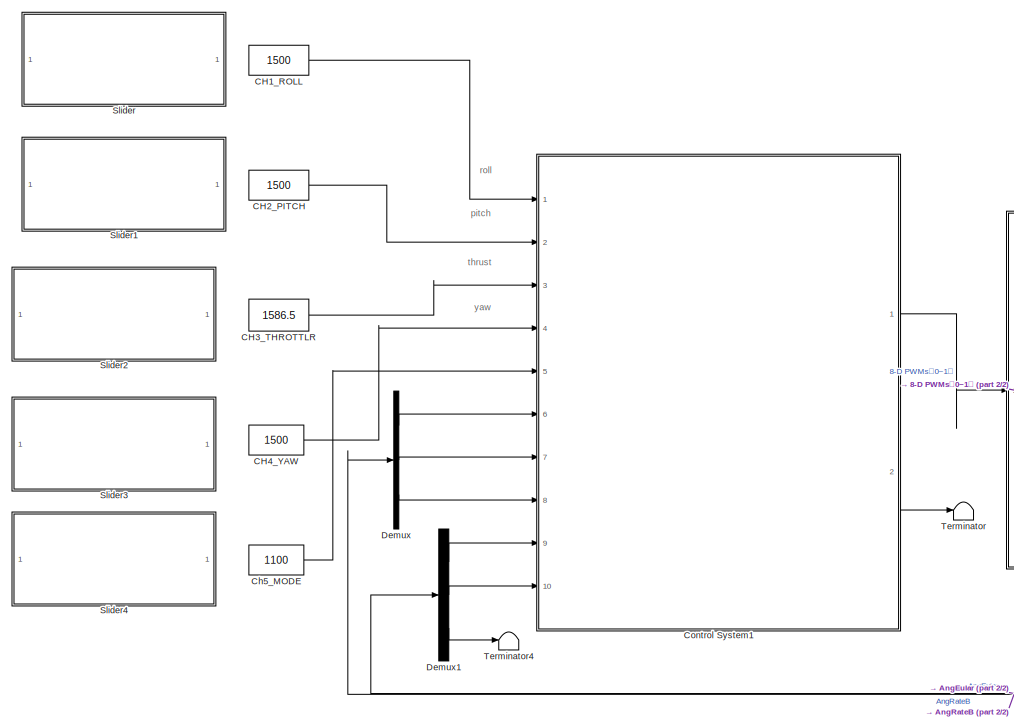
[diagram: root canvas - part 1/2, left side, full height]
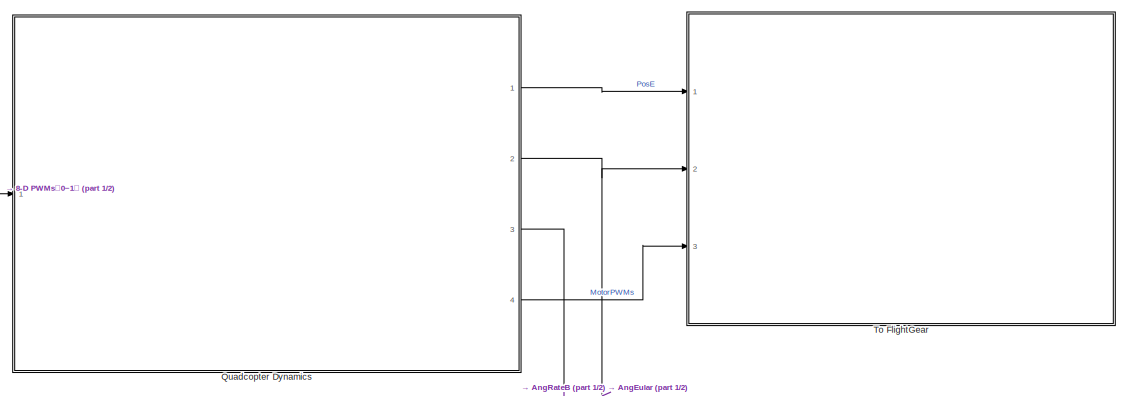
[diagram: root canvas - part 2/2, middle right region]
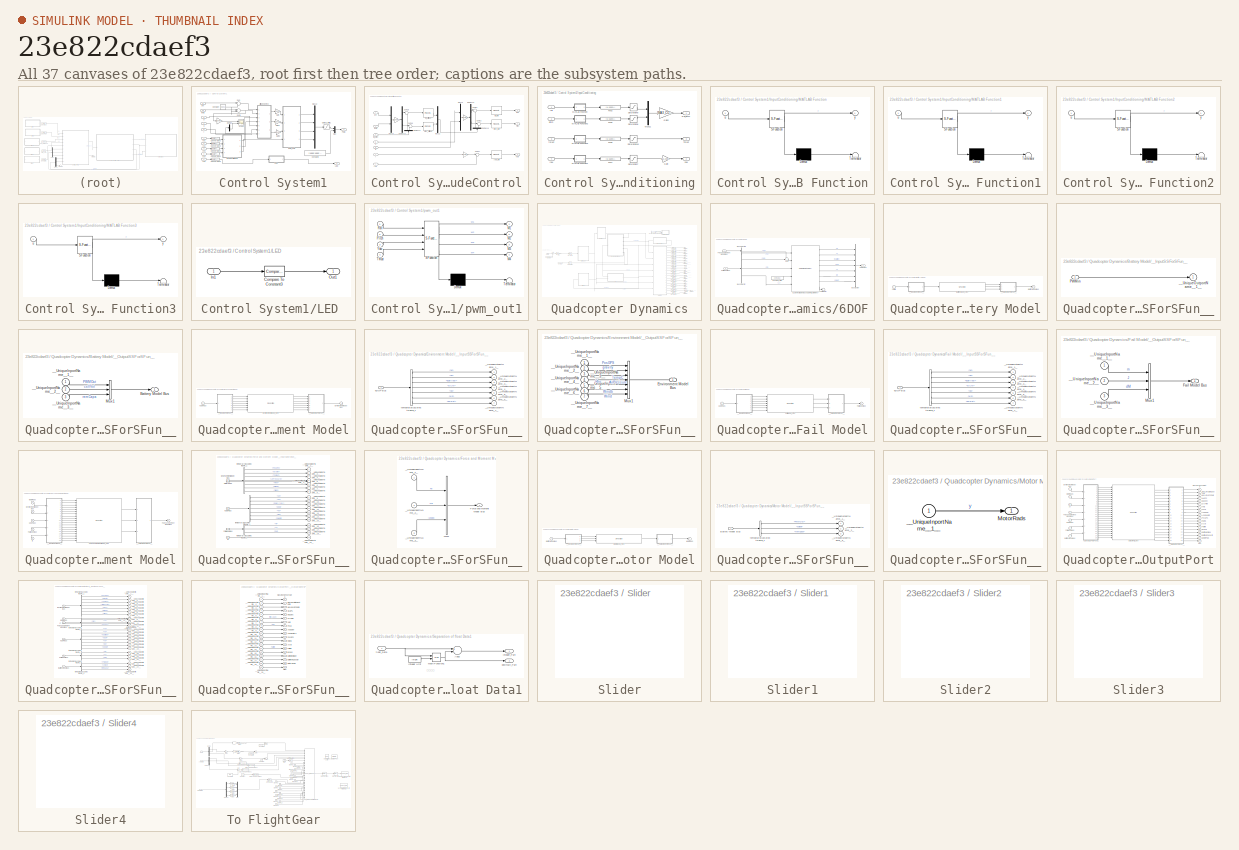
[diagram: thumbnail index - all 37 canvases of the model, root first then tree order]
MODEL slx_23e822cdaef3
KIND model
CONFIG AbsTol = auto
CONFIG EnableMultiTasking = off
CONFIG FixedStep = 0.001
CONFIG InitFcn = Init_control;
CONFIG MaxStep = auto
CONFIG MinStep = auto
CONFIG RelTol = 1e-3
CONFIG SampleTimeConstraint = Unconstrained
CONFIG Solver = ode4
CONFIG SolverName = ode4
CONFIG StartTime = 0.0
CONFIG StopTime = 2000
BLOCK [Constant]      CH3_THROTTLR 
  OutDataTypeStr = uint16
  Value = 1586.5
BLOCK [Constant]      CH4_YAW     
  OutDataTypeStr = uint16
  Value = 1500
BLOCK [Constant]  CH2_PITCH 
  OutDataTypeStr = uint16
  Value = 1500
BLOCK [Constant] CH1_ROLL   
  OutDataTypeStr = uint16
  Value = 1500
BLOCK [Constant] Ch5_MODE 
  OutDataTypeStr = uint16
  Value = 1100
BLOCK [SubSystem] Control System1
  Ports = [10, 2]
  RequestExecContextInheritance = off
  Variant = off
BLOCK [Gain] Control System1/ 
  Gain = 180/pi
  OutDataTypeStr = Inherit: Inherit via internal rule
  ParamDataTypeStr = Inherit: Inherit via internal rule
  SaturateOnIntegerOverflow = off
BLOCK [SubSystem] Control System1/AttitudeControl
  Ports = [7, 3]
  RequestExecContextInheritance = off
  Variant = off
BLOCK [Gain] Control System1/AttitudeControl/ 
  Gain = 180/pi
  OutDataTypeStr = Inherit: Inherit via internal rule
  ParamDataTypeStr = Inherit: Inherit via internal rule
  SaturateOnIntegerOverflow = off
BLOCK [Gain] Control System1/AttitudeControl/  
  Gain = 180/pi
  OutDataTypeStr = Inherit: Inherit via internal rule
  ParamDataTypeStr = Inherit: Inherit via internal rule
  SaturateOnIntegerOverflow = off
BLOCK [Gain] Control System1/AttitudeControl/          
  Gain = 180/pi
  OutDataTypeStr = Inherit: Inherit via internal rule
  ParamDataTypeStr = Inherit: Inherit via internal rule
  SaturateOnIntegerOverflow = off
BLOCK [Demux] Control System1/AttitudeControl/Demux10
  DisplayOption = bar
  Outputs = 2
  Ports = [1, 2]
BLOCK [Demux] Control System1/AttitudeControl/Demux12
  DisplayOption = bar
  Outputs = 2
  Ports = [1, 2]
BLOCK [Demux] Control System1/AttitudeControl/Demux13
  DisplayOption = bar
  Outputs = 2
  Ports = [1, 2]
BLOCK [Demux] Control System1/AttitudeControl/Demux16
  DisplayOption = bar
  Outputs = 2
  Ports = [1, 2]
BLOCK [Mux] Control System1/AttitudeControl/Mux13
  DisplayOption = bar
  Inputs = 2
  Ports = [2, 1]
BLOCK [Mux] Control System1/AttitudeControl/Mux15
  DisplayOption = bar
  Inputs = 2
  Ports = [2, 1]
BLOCK [Mux] Control System1/AttitudeControl/Mux22
  DisplayOption = bar
  Inputs = 2
  Ports = [2, 1]
BLOCK [Outport] Control System1/AttitudeControl/Pitch
  IconDisplay = Port number
  Port = 2
BLOCK [Outport] Control System1/AttitudeControl/Roll
  IconDisplay = Port number
BLOCK [Sum] Control System1/AttitudeControl/Sum17
  IconShape = round
  InputSameDT = off
  Inputs = |-+
  OutDataTypeStr = Inherit: Inherit via internal rule
  Ports = [2, 1]
  SaturateOnIntegerOverflow = off
BLOCK [Sum] Control System1/AttitudeControl/Sum18
  IconShape = round
  InputSameDT = off
  Inputs = |-+
  OutDataTypeStr = Inherit: Inherit via internal rule
  Ports = [2, 1]
  SaturateOnIntegerOverflow = off
BLOCK [Sum] Control System1/AttitudeControl/Sum19
  IconShape = round
  InputSameDT = off
  Inputs = |-+
  OutDataTypeStr = Inherit: Inherit via internal rule
  Ports = [2, 1]
  SaturateOnIntegerOverflow = off
BLOCK [Sum] Control System1/AttitudeControl/Sum21
  IconShape = round
  InputSameDT = off
  Inputs = |-+
  OutDataTypeStr = Inherit: Inherit via internal rule
  Ports = [2, 1]
  SaturateOnIntegerOverflow = off
BLOCK [Sum] Control System1/AttitudeControl/Sum22
  IconShape = round
  InputSameDT = off
  Inputs = |-+
  OutDataTypeStr = Inherit: Inherit via internal rule
  Ports = [2, 1]
  SaturateOnIntegerOverflow = off
BLOCK [Outport] Control System1/AttitudeControl/Yaw
  IconDisplay = Port number
  Port = 3
BLOCK [Inport] Control System1/AttitudeControl/p
  IconDisplay = Port number
  Port = 5
BLOCK [Inport] Control System1/AttitudeControl/phi
  IconDisplay = Port number
BLOCK [Reference] Control System1/AttitudeControl/pitch_attitude  REF=simulink/Continuous/PID Controller
  Ports = [1, 1]
  SourceBlock = simulink/Continuous/PID Controller
  SourceProductBaseCode = SL
  SourceProductName = Simulink
  SourceType = PID 1dof
BLOCK [Reference] Control System1/AttitudeControl/pitch_rate  REF=simulink/Continuous/PID Controller
  Ports = [1, 1]
  SourceBlock = simulink/Continuous/PID Controller
  SourceProductBaseCode = SL
  SourceProductName = Simulink
  SourceType = PID 1dof
BLOCK [Inport] Control System1/AttitudeControl/q
  IconDisplay = Port number
  Port = 6
BLOCK [Inport] Control System1/AttitudeControl/r
  IconDisplay = Port number
  Port = 7
BLOCK [Reference] Control System1/AttitudeControl/roll_attitude  REF=simulink/Continuous/PID Controller
  Ports = [1, 1]
  SourceBlock = simulink/Continuous/PID Controller
  SourceProductBaseCode = SL
  SourceProductName = Simulink
  SourceType = PID 1dof
BLOCK [Inport] Control System1/AttitudeControl/roll_pitch
  IconDisplay = Port number
  Port = 3
BLOCK [Reference] Control System1/AttitudeControl/roll_rate  REF=simulink/Continuous/PID Controller
  Ports = [1, 1]
  SourceBlock = simulink/Continuous/PID Controller
  SourceProductBaseCode = SL
  SourceProductName = Simulink
  SourceType = PID 1dof
BLOCK [Inport] Control System1/AttitudeControl/theta
  IconDisplay = Port number
  Port = 2
BLOCK [Inport] Control System1/AttitudeControl/yaw
  IconDisplay = Port number
  Port = 4
BLOCK [Reference] Control System1/AttitudeControl/yaw_rate  REF=simulink/Continuous/PID Controller
  Ports = [1, 1]
  SourceBlock = simulink/Continuous/PID Controller
  SourceProductBaseCode = SL
  SourceProductName = Simulink
  SourceType = PID 1dof
BLOCK [Constant] Control System1/Constant
  Value = 0.001
BLOCK [Constant] Control System1/Constant2
  Value = [1000;1000;1000;1000]
BLOCK [DataTypeConversion] Control System1/Conversion2
  OutDataTypeStr = double
  RndMeth = Floor
  SaturateOnIntegerOverflow = off
BLOCK [DataTypeConversion] Control System1/Conversion3
  OutDataTypeStr = double
  RndMeth = Floor
  SaturateOnIntegerOverflow = off
BLOCK [DataTypeConversion] Control System1/Conversion4
  OutDataTypeStr = double
  RndMeth = Floor
  SaturateOnIntegerOverflow = off
BLOCK [DataTypeConversion] Control System1/Conversion5
  OutDataTypeStr = double
  RndMeth = Floor
  SaturateOnIntegerOverflow = off
BLOCK [DataTypeConversion] Control System1/Conversion6
  OutDataTypeStr = double
  RndMeth = Floor
  SaturateOnIntegerOverflow = off
BLOCK [Demux] Control System1/Demux
  DisplayOption = bar
  Outputs = 2
  Ports = [1, 2]
BLOCK [Gain] Control System1/Gain
  Gain = 1/1000
  OutDataTypeStr = Inherit: Inherit via internal rule
  ParamDataTypeStr = Inherit: Inherit via internal rule
  SaturateOnIntegerOverflow = off
BLOCK [Gain] Control System1/Gain1
  Gain = 1/1000
  OutDataTypeStr = Inherit: Inherit via internal rule
  ParamDataTypeStr = Inherit: Inherit via internal rule
  SaturateOnIntegerOverflow = off
BLOCK [Gain] Control System1/Gain2
  Gain = 1/1000
  OutDataTypeStr = Inherit: Inherit via internal rule
  ParamDataTypeStr = Inherit: Inherit via internal rule
  SaturateOnIntegerOverflow = off
BLOCK [SubSystem] Control System1/InputConditioning
  Ports = [4, 3]
  RequestExecContextInheritance = off
  Variant = off
BLOCK [Fcn] Control System1/InputConditioning/Fcn2
  Expr = (u - 1500) / 800
BLOCK [Fcn] Control System1/InputConditioning/Fcn5
  Expr = (u - 1500) / 800
BLOCK [Fcn] Control System1/InputConditioning/Fcn6
  Expr = (u - 1100) / 800
BLOCK [Fcn] Control System1/InputConditioning/Fcn7
  Expr = (u - 1500) / 800
BLOCK [Gain] Control System1/InputConditioning/Gain
  Gain = MAX_CONTROL_ANGLE_RATE_Y
  OutDataTypeStr = Inherit: Inherit via internal rule
  ParamDataTypeStr = Inherit: Inherit via internal rule
  SaturateOnIntegerOverflow = off
BLOCK [Gain] Control System1/InputConditioning/Gain2
  Gain = [MAX_CONTROL_ANGLE_RP MAX_CONTROL_ANGLE_RP]
  OutDataTypeStr = Inherit: Inherit via back propagation
  ParamDataTypeStr = Inherit: Inherit via internal rule
  SaturateOnIntegerOverflow = off
BLOCK [SubSystem] Control System1/InputConditioning/MATLAB Function
  ErrorFcn = Stateflow.Translate.translate
  PermitHierarchicalResolution = ExplicitOnly
  Ports = [1, 1]
  RequestExecContextInheritance = off
  SFBlockType = MATLAB Function
  TreatAsAtomicUnit = on
  Variant = off
BLOCK [Demux] Control System1/InputConditioning/MATLAB Function/ Demux 
  Outputs = 1
  Ports = [1, 1]
BLOCK [S-Function] Control System1/InputConditioning/MATLAB Function/ SFunction 
  EnableBusSupport = on
  FunctionName = sf_sfun
  PortCounts = [1 2]
  Ports = [1, 2]
  SFcnIsStateOwnerBlock = off
  SFunctionDeploymentMode = off
  Tag = Stateflow S-Function CopterSim3DEnvironment 1
BLOCK [Terminator] Control System1/InputConditioning/MATLAB Function/ Terminator 
BLOCK [Inport] Control System1/InputConditioning/MATLAB Function/u
  IconDisplay = Port number
BLOCK [Outport] Control System1/InputConditioning/MATLAB Function/y
  IconDisplay = Port number
BLOCK [SubSystem] Control System1/InputConditioning/MATLAB Function1
  ErrorFcn = Stateflow.Translate.translate
  PermitHierarchicalResolution = ExplicitOnly
  Ports = [1, 1]
  RequestExecContextInheritance = off
  SFBlockType = MATLAB Function
  TreatAsAtomicUnit = on
  Variant = off
BLOCK [Demux] Control System1/InputConditioning/MATLAB Function1/ Demux 
  Outputs = 1
  Ports = [1, 1]
BLOCK [S-Function] Control System1/InputConditioning/MATLAB Function1/ SFunction 
  EnableBusSupport = on
  FunctionName = sf_sfun
  PortCounts = [1 2]
  Ports = [1, 2]
  SFcnIsStateOwnerBlock = off
  SFunctionDeploymentMode = off
  Tag = Stateflow S-Function CopterSim3DEnvironment 4
BLOCK [Terminator] Control System1/InputConditioning/MATLAB Function1/ Terminator 
BLOCK [Inport] Control System1/InputConditioning/MATLAB Function1/u
  IconDisplay = Port number
BLOCK [Outport] Control System1/InputConditioning/MATLAB Function1/y
  IconDisplay = Port number
BLOCK [SubSystem] Control System1/InputConditioning/MATLAB Function2
  ErrorFcn = Stateflow.Translate.translate
  PermitHierarchicalResolution = ExplicitOnly
  Ports = [1, 1]
  RequestExecContextInheritance = off
  SFBlockType = MATLAB Function
  TreatAsAtomicUnit = on
  Variant = off
BLOCK [Demux] Control System1/InputConditioning/MATLAB Function2/ Demux 
  Outputs = 1
  Ports = [1, 1]
BLOCK [S-Function] Control System1/InputConditioning/MATLAB Function2/ SFunction 
  EnableBusSupport = on
  FunctionName = sf_sfun
  PortCounts = [1 2]
  Ports = [1, 2]
  SFcnIsStateOwnerBlock = off
  SFunctionDeploymentMode = off
  Tag = Stateflow S-Function CopterSim3DEnvironment 6
BLOCK [Terminator] Control System1/InputConditioning/MATLAB Function2/ Terminator 
BLOCK [Inport] Control System1/InputConditioning/MATLAB Function2/u
  IconDisplay = Port number
BLOCK [Outport] Control System1/InputConditioning/MATLAB Function2/y
  IconDisplay = Port number
BLOCK [SubSystem] Control System1/InputConditioning/MATLAB Function3
  ErrorFcn = Stateflow.Translate.translate
  PermitHierarchicalResolution = ExplicitOnly
  Ports = [1, 1]
  RequestExecContextInheritance = off
  SFBlockType = MATLAB Function
  TreatAsAtomicUnit = on
  Variant = off
BLOCK [Demux] Control System1/InputConditioning/MATLAB Function3/ Demux 
  Outputs = 1
  Ports = [1, 1]
BLOCK [S-Function] Control System1/InputConditioning/MATLAB Function3/ SFunction 
  EnableBusSupport = on
  FunctionName = sf_sfun
  PortCounts = [1 2]
  Ports = [1, 2]
  SFcnIsStateOwnerBlock = off
  SFunctionDeploymentMode = off
  Tag = Stateflow S-Function CopterSim3DEnvironment 11
BLOCK [Terminator] Control System1/InputConditioning/MATLAB Function3/ Terminator 
BLOCK [Inport] Control System1/InputConditioning/MATLAB Function3/u
  IconDisplay = Port number
BLOCK [Outport] Control System1/InputConditioning/MATLAB Function3/y
  IconDisplay = Port number
BLOCK [Mux] Control System1/InputConditioning/Mux21
  DisplayOption = bar
  Inputs = 2
  Ports = [2, 1]
BLOCK [Outport] Control System1/InputConditioning/Roll_Pitch
  IconDisplay = Port number
BLOCK [Saturate] Control System1/InputConditioning/Saturation10
  InputPortMap = u0
  LowerLimit = 0
  Ports = [1, 1]
  UpperLimit = 1
BLOCK [Saturate] Control System1/InputConditioning/Saturation7
  InputPortMap = u0
  LowerLimit = -1
  Ports = [1, 1]
  UpperLimit = 1
BLOCK [Saturate] Control System1/InputConditioning/Saturation8
  InputPortMap = u0
  LowerLimit = -1
  Ports = [1, 1]
  UpperLimit = 1
BLOCK [Saturate] Control System1/InputConditioning/Saturation9
  InputPortMap = u0
  LowerLimit = -1
  Ports = [1, 1]
  UpperLimit = 1
BLOCK [Outport] Control System1/InputConditioning/Thrust
  IconDisplay = Port number
  Port = 3
BLOCK [Outport] Control System1/InputConditioning/Yaw
  IconDisplay = Port number
  Port = 2
BLOCK [Inport] Control System1/InputConditioning/pitch
  IconDisplay = Port number
  Port = 2
BLOCK [Inport] Control System1/InputConditioning/roll
  IconDisplay = Port number
BLOCK [Inport] Control System1/InputConditioning/thrust
  IconDisplay = Port number
  Port = 3
BLOCK [Inport] Control System1/InputConditioning/yaw
  IconDisplay = Port number
  Port = 4
BLOCK [Outport] Control System1/LED
  IconDisplay = Port number
  Port = 2
  PortDimensions = 1
  SamplingMode = Sample based
  SignalType = real
BLOCK [SubSystem] Control System1/LED 
  Ports = [1, 1]
  RequestExecContextInheritance = off
  Variant = off
BLOCK [Reference] Control System1/LED /Compare To Constant3  REF=simulink/Logic and Bit
Operations/Compare
To Constant
  Ports = [1, 1]
  SourceBlock = simulink/Logic and Bit\nOperations/Compare\nTo Constant
  SourceProductBaseCode = SL
  SourceProductName = Simulink
  SourceType = Compare To Constant
BLOCK [Inport] Control System1/LED /In1
  IconDisplay = Port number
BLOCK [Outport] Control System1/LED /Out1
  IconDisplay = Port number
BLOCK [Mux] Control System1/Mux
  DisplayOption = bar
  Inputs = 2
  Ports = [2, 1]
BLOCK [Mux] Control System1/Mux12
  DisplayOption = bar
  Ports = [4, 1]
BLOCK [Saturate] Control System1/Output_Limits1
  InputPortMap = u0
  LowerLimit = 1000
  Ports = [1, 1]
  UpperLimit = 2000
BLOCK [Outport] Control System1/PWM
  IconDisplay = Port number
  PortDimensions = 8
  SamplingMode = Sample based
  SignalType = real
BLOCK [Scope] Control System1/Scope
  NumInputPorts = 2
  Ports = [2]
  ScopeSpecificationString = Simulink.scopes.TimeScopeBlockCfg('CurrentConfiguration', extmgr.ConfigurationSet(extmgr.Configuration('Core','General UI',true,'FigureColor',[1 1 1]),extmgr.Configuration('Core','Source UI',true),extmgr.Configuration('Sources','WiredSimulink',true),extmgr.Configuration('Visuals','Time Domain',true,'SerializedDisplays',{struct('MinYLimReal','-2.83231','MaxYLimReal','25.49078','YLabelReal','','MinY...<+1605ch>
BLOCK [Sum] Control System1/Sum
  IconShape = round
  InputSameDT = off
  Inputs = |++
  OutDataTypeStr = Inherit: Inherit via internal rule
  Ports = [2, 1]
  SaturateOnIntegerOverflow = off
BLOCK [Sum] Control System1/Sum1
  IconShape = round
  InputSameDT = off
  Inputs = |++
  OutDataTypeStr = Inherit: Inherit via internal rule
  Ports = [2, 1]
  SaturateOnIntegerOverflow = off
BLOCK [Inport] Control System1/ch1
  IconDisplay = Port number
  OutDataTypeStr = uint16
  PortDimensions = 1
  SamplingMode = Sample based
  SignalType = real
BLOCK [Inport] Control System1/ch2
  IconDisplay = Port number
  OutDataTypeStr = uint16
  Port = 2
  PortDimensions = 1
  SamplingMode = Sample based
  SignalType = real
BLOCK [Inport] Control System1/ch3
  IconDisplay = Port number
  OutDataTypeStr = uint16
  Port = 3
  PortDimensions = 1
  SamplingMode = Sample based
  SignalType = real
BLOCK [Inport] Control System1/ch4
  IconDisplay = Port number
  OutDataTypeStr = uint16
  Port = 4
  PortDimensions = 1
  SamplingMode = Sample based
  SignalType = real
BLOCK [Inport] Control System1/ch5
  IconDisplay = Port number
  Interpolate = off
  OutDataTypeStr = uint16
  Port = 5
  PortDimensions = 1
  SamplingMode = Sample based
  SignalType = real
BLOCK [Inport] Control System1/p
  IconDisplay = Port number
  Port = 6
  PortDimensions = 1
  SamplingMode = Sample based
  SignalType = real
BLOCK [Inport] Control System1/phi
  IconDisplay = Port number
  Port = 9
  PortDimensions = 1
  SamplingMode = Sample based
  SignalType = real
BLOCK [SubSystem] Control System1/pwm_out1
  ErrorFcn = Stateflow.Translate.translate
  PermitHierarchicalResolution = ExplicitOnly
  Ports = [4, 4]
  RequestExecContextInheritance = off
  SFBlockType = MATLAB Function
  SystemSampleTime = 0.004
  TreatAsAtomicUnit = on
  Variant = off
BLOCK [Demux] Control System1/pwm_out1/ Demux 
  Outputs = 1
  Ports = [1, 1]
BLOCK [S-Function] Control System1/pwm_out1/ SFunction 
  EnableBusSupport = on
  FunctionName = sf_sfun
  PortCounts = [4 5]
  Ports = [4, 5]
  SFcnIsStateOwnerBlock = off
  SFunctionDeploymentMode = off
  Tag = Stateflow S-Function CopterSim3DEnvironment 8
BLOCK [Terminator] Control System1/pwm_out1/ Terminator 
BLOCK [Outport] Control System1/pwm_out1/M1
  IconDisplay = Port number
BLOCK [Outport] Control System1/pwm_out1/M2
  IconDisplay = Port number
  Port = 2
BLOCK [Outport] Control System1/pwm_out1/M3
  IconDisplay = Port number
  Port = 3
BLOCK [Outport] Control System1/pwm_out1/M4
  IconDisplay = Port number
  Port = 4
BLOCK [Inport] Control System1/pwm_out1/Pitch
  IconDisplay = Port number
  Port = 2
BLOCK [Inport] Control System1/pwm_out1/Roll
  IconDisplay = Port number
BLOCK [Inport] Control System1/pwm_out1/Thrust
  IconDisplay = Port number
  Port = 4
BLOCK [Inport] Control System1/pwm_out1/Yaw
  IconDisplay = Port number
  Port = 3
BLOCK [Inport] Control System1/q
  IconDisplay = Port number
  Port = 7
  PortDimensions = 1
  SamplingMode = Sample based
  SignalType = real
BLOCK [Inport] Control System1/r
  IconDisplay = Port number
  Port = 8
  PortDimensions = 1
  SamplingMode = Sample based
  SignalType = real
BLOCK [Inport] Control System1/theta
  IconDisplay = Port number
  Port = 10
  PortDimensions = 1
  SamplingMode = Sample based
  SignalType = real
BLOCK [Demux] Demux
  DisplayOption = bar
  Outputs = 3
  Ports = [1, 3]
BLOCK [Demux] Demux1
  DisplayOption = bar
  Outputs = 3
  Ports = [1, 3]
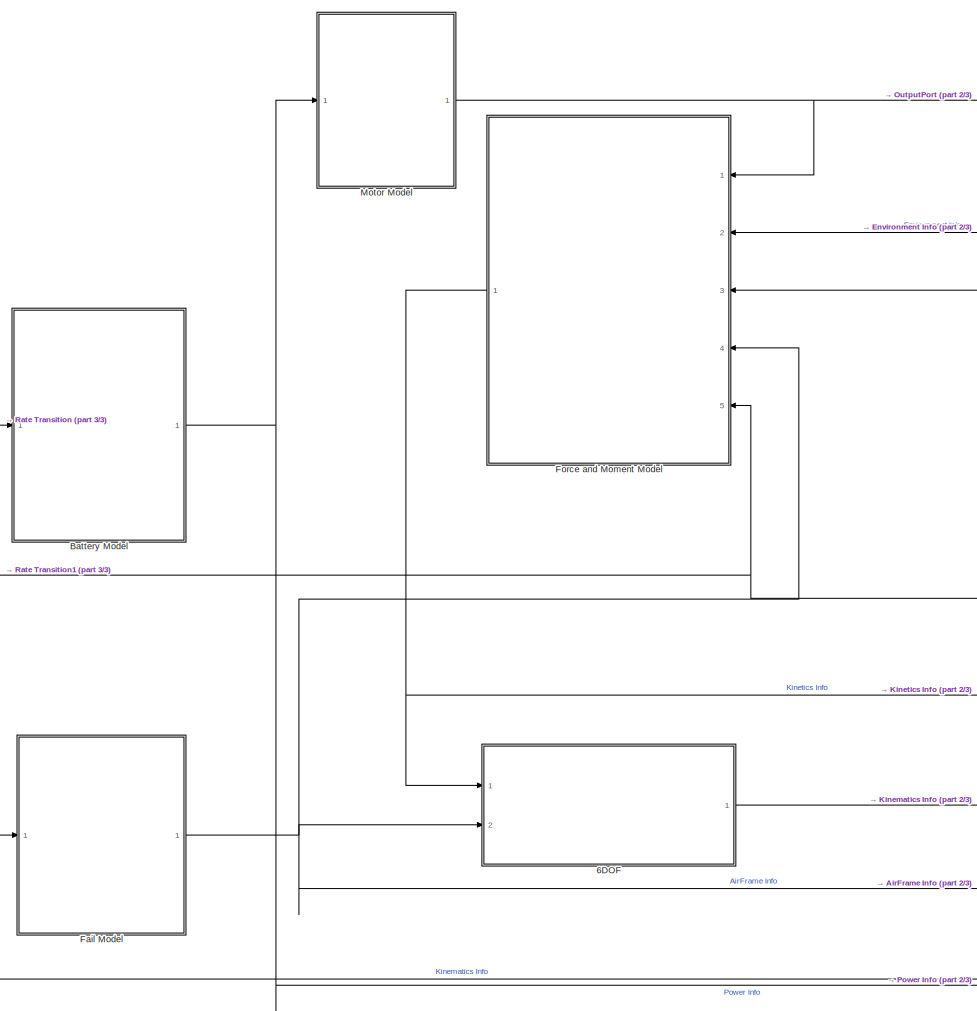
[diagram: Quadcopter Dynamics - part 1/3, center side, full height]
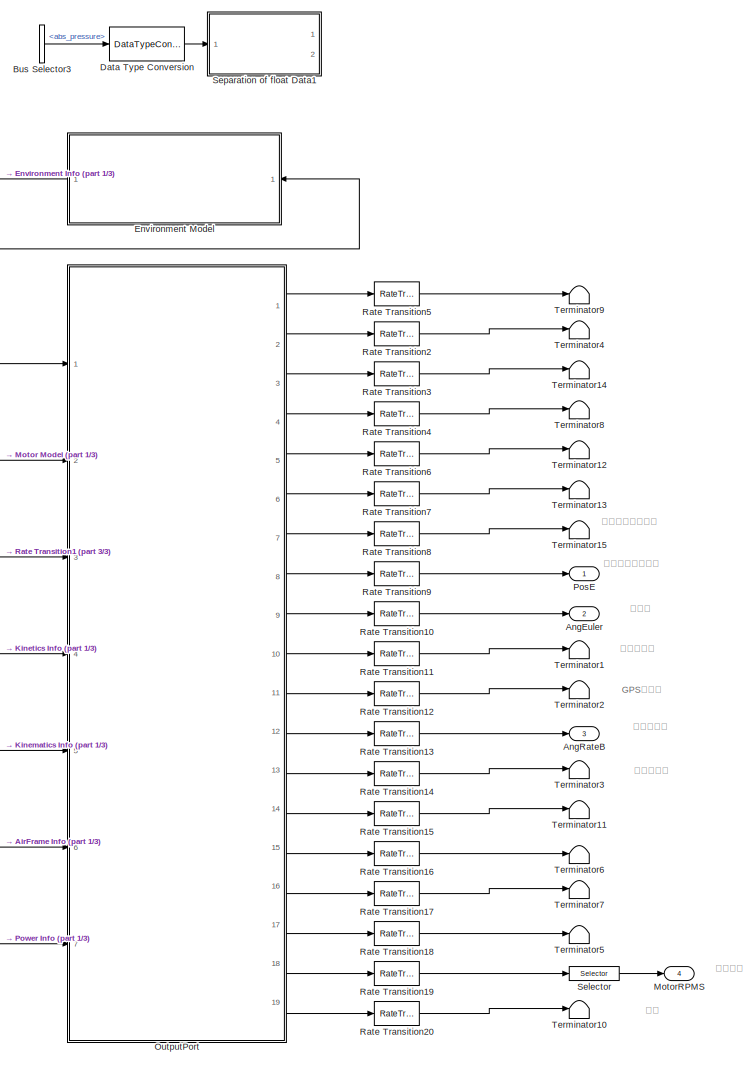
[diagram: Quadcopter Dynamics - part 2/3, right side, full height]
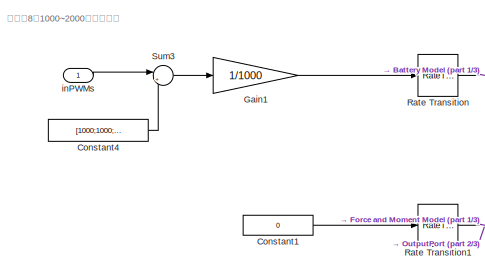
[diagram: Quadcopter Dynamics - part 3/3, middle left region]
BLOCK [SubSystem] Quadcopter Dynamics
  Ports = [1, 4]
  RequestExecContextInheritance = off
  Variant = off
BLOCK [SubSystem] Quadcopter Dynamics/6DOF
  Ports = [2, 1]
  RequestExecContextInheritance = off
  Variant = off
BLOCK [Outport] Quadcopter Dynamics/6DOF/6DOF Bus
  IconDisplay = Port number
BLOCK [BusCreator] Quadcopter Dynamics/6DOF/Bus Creator
  DisplayOption = bar
  InheritFromInputs = on
  Inputs = 7
  Ports = [7, 1]
BLOCK [BusSelector] Quadcopter Dynamics/6DOF/Bus Selector
  OutputAsBus = off
  OutputSignals = dM,m,J
  Ports = [1, 3]
BLOCK [BusSelector] Quadcopter Dynamics/6DOF/Bus Selector1
  OutputAsBus = off
  OutputSignals = Fb,Mb
  Ports = [1, 2]
BLOCK [Constant] Quadcopter Dynamics/6DOF/Constant_dI//dt
  Value = zeros(3,3)
BLOCK [Reference] Quadcopter Dynamics/6DOF/Custom Variable Mass 6DOF (Quaternion)  REF=shared6dof/6DOF (Euler Angles)
  Ports = [5, 8]
  SourceBlock = shared6dof/6DOF (Euler Angles)
  SourceProductBaseCode = AE
  SourceProductName = Aerospace Blockset
  SourceType = 6DOF EoM (Body Axis)
BLOCK [Inport] Quadcopter Dynamics/6DOF/Fail Model Bus
  IconDisplay = Port number
  Port = 2
BLOCK [Inport] Quadcopter Dynamics/6DOF/Force and Moment Model Bus
  IconDisplay = Port number
BLOCK [Sum] Quadcopter Dynamics/6DOF/Sum
  IconShape = round
  InputSameDT = off
  Inputs = ++|
  OutDataTypeStr = Inherit: Inherit via internal rule
  Ports = [2, 1]
  SaturateOnIntegerOverflow = off
BLOCK [Terminator] Quadcopter Dynamics/6DOF/Terminator
BLOCK [Outport] Quadcopter Dynamics/AngEuler
  IconDisplay = Port number
  Port = 2
BLOCK [Outport] Quadcopter Dynamics/AngRateB
  IconDisplay = Port number
  Port = 3
BLOCK [SubSystem] Quadcopter Dynamics/Battery Model
  Ports = [1, 1]
  RequestExecContextInheritance = off
  Variant = off
BLOCK [Outport] Quadcopter Dynamics/Battery Model/Battery Model Bus
  IconDisplay = Port number
BLOCK [S-Function] Quadcopter Dynamics/Battery Model/Battery Model_sfcn
  CopyFcn = if ~strcmp(get_param(gcb,'Linkstatus'),'none') && ...\n~strcmp(get_param(gcb,'Linkstatus'),'implicit')      \n  set_param(gcb,'LinkStatus','none');                \nend
  EnableBusSupport = off
  FunctionName = Battery_sf
  Ports = [1, 3]
  SFcnIsStateOwnerBlock = off
  SFunctionDeploymentMode = off
BLOCK [Inport] Quadcopter Dynamics/Battery Model/PWMin
  IconDisplay = Port number
BLOCK [SubSystem] Quadcopter Dynamics/Battery Model/__InputSSForSFun__
  PermitHierarchicalResolution = ExplicitOnly
  Ports = [1, 1]
  RequestExecContextInheritance = off
  Variant = off
BLOCK [Inport] Quadcopter Dynamics/Battery Model/__InputSSForSFun__/PWMin
  IconDisplay = Port number
BLOCK [Outport] Quadcopter Dynamics/Battery Model/__InputSSForSFun__/__UniqueOutportName__1__
  IconDisplay = Port number
BLOCK [SubSystem] Quadcopter Dynamics/Battery Model/__OutputSSForSFun__
  PermitHierarchicalResolution = ExplicitOnly
  Ports = [3, 1]
  RequestExecContextInheritance = off
  Variant = off
BLOCK [Outport] Quadcopter Dynamics/Battery Model/__OutputSSForSFun__/Battery Model Bus
  IconDisplay = Port number
BLOCK [BusCreator] Quadcopter Dynamics/Battery Model/__OutputSSForSFun__/Mux1
  InheritFromInputs = on
  Inputs = 3
  Ports = [3, 1]
BLOCK [Inport] Quadcopter Dynamics/Battery Model/__OutputSSForSFun__/__UniqueInportName__1__
  IconDisplay = Port number
BLOCK [Inport] Quadcopter Dynamics/Battery Model/__OutputSSForSFun__/__UniqueInportName__2__
  IconDisplay = Port number
  Port = 2
BLOCK [Inport] Quadcopter Dynamics/Battery Model/__OutputSSForSFun__/__UniqueInportName__3__
  IconDisplay = Port number
  Port = 3
BLOCK [BusSelector] Quadcopter Dynamics/Bus Selector3
  Commented = on
  OutputAsBus = off
  OutputSignals = abs_pressure
  Ports = [1, 1]
BLOCK [Constant] Quadcopter Dynamics/Constant1
  Value = 0
BLOCK [Constant] Quadcopter Dynamics/Constant4
  Value = [1000;1000;1000;1000;1000;1000;1000;1000]
BLOCK [DataTypeConversion] Quadcopter Dynamics/Data Type Conversion
  Commented = on
  OutDataTypeStr = double
  RndMeth = Floor
  SaturateOnIntegerOverflow = off
BLOCK [SubSystem] Quadcopter Dynamics/Environment Model
  Ports = [1, 1]
  RequestExecContextInheritance = off
  Variant = off
BLOCK [Inport] Quadcopter Dynamics/Environment Model/6DOF Bus
  IconDisplay = Port number
BLOCK [Outport] Quadcopter Dynamics/Environment Model/Environment Model Bus
  IconDisplay = Port number
BLOCK [S-Function] Quadcopter Dynamics/Environment Model/Environment Model_sfcn
  CopyFcn = if ~strcmp(get_param(gcb,'Linkstatus'),'none') && ...\n~strcmp(get_param(gcb,'Linkstatus'),'implicit')      \n  set_param(gcb,'LinkStatus','none');                \nend
  EnableBusSupport = off
  FunctionName = Environment_sf
  Parameters = sfcnParam1, sfcnParam2, sfcnParam3
  Ports = [7, 7]
  SFcnIsStateOwnerBlock = on
  SFcnStateName = DWORK0
  SFunctionDeploymentMode = off
BLOCK [SubSystem] Quadcopter Dynamics/Environment Model/__InputSSForSFun__
  PermitHierarchicalResolution = ExplicitOnly
  Ports = [1, 7]
  RequestExecContextInheritance = off
  Variant = off
BLOCK [Inport] Quadcopter Dynamics/Environment Model/__InputSSForSFun__/6DOF Bus
  IconDisplay = Port number
BLOCK [Outport] Quadcopter Dynamics/Environment Model/__InputSSForSFun__/__UniqueOutportName__1__
  IconDisplay = Port number
BLOCK [Outport] Quadcopter Dynamics/Environment Model/__InputSSForSFun__/__UniqueOutportName__2__
  IconDisplay = Port number
  Port = 2
BLOCK [Outport] Quadcopter Dynamics/Environment Model/__InputSSForSFun__/__UniqueOutportName__3__
  IconDisplay = Port number
  Port = 3
BLOCK [Outport] Quadcopter Dynamics/Environment Model/__InputSSForSFun__/__UniqueOutportName__4__
  IconDisplay = Port number
  Port = 4
BLOCK [Outport] Quadcopter Dynamics/Environment Model/__InputSSForSFun__/__UniqueOutportName__5__
  IconDisplay = Port number
  Port = 5
BLOCK [Outport] Quadcopter Dynamics/Environment Model/__InputSSForSFun__/__UniqueOutportName__6__
  IconDisplay = Port number
  Port = 6
BLOCK [Outport] Quadcopter Dynamics/Environment Model/__InputSSForSFun__/__UniqueOutportName__7__
  IconDisplay = Port number
  Port = 7
BLOCK [BusSelector] Quadcopter Dynamics/Environment Model/__InputSSForSFun__/temporaryBusSelectName_1
  OutputAsBus = off
  OutputSignals = Ve,Xe,Eular(rad),DCM,Vb,wb,dwb/dt
  Ports = [1, 7]
BLOCK [SubSystem] Quadcopter Dynamics/Environment Model/__OutputSSForSFun__
  PermitHierarchicalResolution = ExplicitOnly
  Ports = [7, 1]
  RequestExecContextInheritance = off
  Variant = off
BLOCK [Outport] Quadcopter Dynamics/Environment Model/__OutputSSForSFun__/Environment Model Bus
  IconDisplay = Port number
BLOCK [BusCreator] Quadcopter Dynamics/Environment Model/__OutputSSForSFun__/Mux1
  InheritFromInputs = on
  Inputs = 7
  Ports = [7, 1]
BLOCK [Inport] Quadcopter Dynamics/Environment Model/__OutputSSForSFun__/__UniqueInportName__1__
  IconDisplay = Port number
BLOCK [Inport] Quadcopter Dynamics/Environment Model/__OutputSSForSFun__/__UniqueInportName__2__
  IconDisplay = Port number
  Port = 2
BLOCK [Inport] Quadcopter Dynamics/Environment Model/__OutputSSForSFun__/__UniqueInportName__3__
  IconDisplay = Port number
  Port = 3
BLOCK [Inport] Quadcopter Dynamics/Environment Model/__OutputSSForSFun__/__UniqueInportName__4__
  IconDisplay = Port number
  Port = 4
BLOCK [Inport] Quadcopter Dynamics/Environment Model/__OutputSSForSFun__/__UniqueInportName__5__
  IconDisplay = Port number
  Port = 5
BLOCK [Inport] Quadcopter Dynamics/Environment Model/__OutputSSForSFun__/__UniqueInportName__6__
  IconDisplay = Port number
  Port = 6
BLOCK [Inport] Quadcopter Dynamics/Environment Model/__OutputSSForSFun__/__UniqueInportName__7__
  IconDisplay = Port number
  Port = 7
BLOCK [SubSystem] Quadcopter Dynamics/Fail Model
  Ports = [1, 1]
  RequestExecContextInheritance = off
  Variant = off
BLOCK [Inport] Quadcopter Dynamics/Fail Model/6DOF Bus
  IconDisplay = Port number
BLOCK [Outport] Quadcopter Dynamics/Fail Model/Fail Model Bus
  IconDisplay = Port number
BLOCK [S-Function] Quadcopter Dynamics/Fail Model/Fail Model_sfcn
  CopyFcn = if ~strcmp(get_param(gcb,'Linkstatus'),'none') && ...\n~strcmp(get_param(gcb,'Linkstatus'),'implicit')      \n  set_param(gcb,'LinkStatus','none');                \nend
  EnableBusSupport = off
  FunctionName = Fail_sf
  Parameters = sfcnParam1, sfcnParam2, sfcnParam3
  Ports = [7, 3]
  SFcnIsStateOwnerBlock = off
  SFunctionDeploymentMode = off
BLOCK [SubSystem] Quadcopter Dynamics/Fail Model/__InputSSForSFun__
  PermitHierarchicalResolution = ExplicitOnly
  Ports = [1, 7]
  RequestExecContextInheritance = off
  Variant = off
BLOCK [Inport] Quadcopter Dynamics/Fail Model/__InputSSForSFun__/6DOF Bus
  IconDisplay = Port number
BLOCK [Outport] Quadcopter Dynamics/Fail Model/__InputSSForSFun__/__UniqueOutportName__1__
  IconDisplay = Port number
BLOCK [Outport] Quadcopter Dynamics/Fail Model/__InputSSForSFun__/__UniqueOutportName__2__
  IconDisplay = Port number
  Port = 2
BLOCK [Outport] Quadcopter Dynamics/Fail Model/__InputSSForSFun__/__UniqueOutportName__3__
  IconDisplay = Port number
  Port = 3
BLOCK [Outport] Quadcopter Dynamics/Fail Model/__InputSSForSFun__/__UniqueOutportName__4__
  IconDisplay = Port number
  Port = 4
BLOCK [Outport] Quadcopter Dynamics/Fail Model/__InputSSForSFun__/__UniqueOutportName__5__
  IconDisplay = Port number
  Port = 5
BLOCK [Outport] Quadcopter Dynamics/Fail Model/__InputSSForSFun__/__UniqueOutportName__6__
  IconDisplay = Port number
  Port = 6
BLOCK [Outport] Quadcopter Dynamics/Fail Model/__InputSSForSFun__/__UniqueOutportName__7__
  IconDisplay = Port number
  Port = 7
BLOCK [BusSelector] Quadcopter Dynamics/Fail Model/__InputSSForSFun__/temporaryBusSelectName_1
  OutputAsBus = off
  OutputSignals = Ve,Xe,Eular(rad),DCM,Vb,wb,dwb/dt
  Ports = [1, 7]
BLOCK [SubSystem] Quadcopter Dynamics/Fail Model/__OutputSSForSFun__
  PermitHierarchicalResolution = ExplicitOnly
  Ports = [3, 1]
  RequestExecContextInheritance = off
  Variant = off
BLOCK [Outport] Quadcopter Dynamics/Fail Model/__OutputSSForSFun__/Fail Model Bus
  IconDisplay = Port number
BLOCK [BusCreator] Quadcopter Dynamics/Fail Model/__OutputSSForSFun__/Mux1
  InheritFromInputs = on
  Inputs = 3
  Ports = [3, 1]
BLOCK [Inport] Quadcopter Dynamics/Fail Model/__OutputSSForSFun__/__UniqueInportName__1__
  IconDisplay = Port number
BLOCK [Inport] Quadcopter Dynamics/Fail Model/__OutputSSForSFun__/__UniqueInportName__2__
  IconDisplay = Port number
  Port = 2
BLOCK [Inport] Quadcopter Dynamics/Fail Model/__OutputSSForSFun__/__UniqueInportName__3__
  IconDisplay = Port number
  Port = 3
BLOCK [SubSystem] Quadcopter Dynamics/Force and Moment Model
  Ports = [5, 1]
  RequestExecContextInheritance = off
  Variant = off
BLOCK [Inport] Quadcopter Dynamics/Force and Moment Model/6DOF Bus
  IconDisplay = Port number
  Port = 3
BLOCK [Inport] Quadcopter Dynamics/Force and Moment Model/Environment Model Bus
  IconDisplay = Port number
  Port = 2
BLOCK [Inport] Quadcopter Dynamics/Force and Moment Model/Fail Model Bus
  IconDisplay = Port number
  Port = 4
BLOCK [Outport] Quadcopter Dynamics/Force and Moment Model/Force and Moment Model Bus
  IconDisplay = Port number
BLOCK [S-Function] Quadcopter Dynamics/Force and Moment Model/Force and Moment Model_sfcn
  CopyFcn = if ~strcmp(get_param(gcb,'Linkstatus'),'none') && ...\n~strcmp(get_param(gcb,'Linkstatus'),'implicit')      \n  set_param(gcb,'LinkStatus','none');                \nend
  EnableBusSupport = off
  FunctionName = Force_sf
  Parameters = sfcnParam1, sfcnParam2, sfcnParam3, sfcnParam4, sfcnParam5, sfcnParam6, sfcnParam7, sfcnParam8
  Ports = [19, 3]
  SFcnIsStateOwnerBlock = off
  SFunctionDeploymentMode = off
BLOCK [Inport] Quadcopter Dynamics/Force and Moment Model/MotorRads
  IconDisplay = Port number
BLOCK [SubSystem] Quadcopter Dynamics/Force and Moment Model/__InputSSForSFun__
  PermitHierarchicalResolution = ExplicitOnly
  Ports = [5, 19]
  RequestExecContextInheritance = off
  Variant = off
BLOCK [Inport] Quadcopter Dynamics/Force and Moment Model/__InputSSForSFun__/6DOF Bus
  IconDisplay = Port number
  Port = 3
BLOCK [Inport] Quadcopter Dynamics/Force and Moment Model/__InputSSForSFun__/Environment Model Bus
  IconDisplay = Port number
  Port = 2
BLOCK [Inport] Quadcopter Dynamics/Force and Moment Model/__InputSSForSFun__/Fail Model Bus
  IconDisplay = Port number
  Port = 4
BLOCK [Inport] Quadcopter Dynamics/Force and Moment Model/__InputSSForSFun__/MotorRads
  IconDisplay = Port number
BLOCK [Outport] Quadcopter Dynamics/Force and Moment Model/__InputSSForSFun__/__UniqueOutportName__10__
  IconDisplay = Port number
  Port = 10
BLOCK [Outport] Quadcopter Dynamics/Force and Moment Model/__InputSSForSFun__/__UniqueOutportName__11__
  IconDisplay = Port number
  Port = 11
BLOCK [Outport] Quadcopter Dynamics/Force and Moment Model/__InputSSForSFun__/__UniqueOutportName__12__
  IconDisplay = Port number
  Port = 12
BLOCK [Outport] Quadcopter Dynamics/Force and Moment Model/__InputSSForSFun__/__UniqueOutportName__13__
  IconDisplay = Port number
  Port = 13
BLOCK [Outport] Quadcopter Dynamics/Force and Moment Model/__InputSSForSFun__/__UniqueOutportName__14__
  IconDisplay = Port number
  Port = 14
BLOCK [Outport] Quadcopter Dynamics/Force and Moment Model/__InputSSForSFun__/__UniqueOutportName__15__
  IconDisplay = Port number
  Port = 15
BLOCK [Outport] Quadcopter Dynamics/Force and Moment Model/__InputSSForSFun__/__UniqueOutportName__16__
  IconDisplay = Port number
  Port = 16
BLOCK [Outport] Quadcopter Dynamics/Force and Moment Model/__InputSSForSFun__/__UniqueOutportName__17__
  IconDisplay = Port number
  Port = 17
BLOCK [Outport] Quadcopter Dynamics/Force and Moment Model/__InputSSForSFun__/__UniqueOutportName__18__
  IconDisplay = Port number
  Port = 18
BLOCK [Outport] Quadcopter Dynamics/Force and Moment Model/__InputSSForSFun__/__UniqueOutportName__19__
  IconDisplay = Port number
  Port = 19
BLOCK [Outport] Quadcopter Dynamics/Force and Moment Model/__InputSSForSFun__/__UniqueOutportName__1__
  IconDisplay = Port number
BLOCK [Outport] Quadcopter Dynamics/Force and Moment Model/__InputSSForSFun__/__UniqueOutportName__2__
  IconDisplay = Port number
  Port = 2
BLOCK [Outport] Quadcopter Dynamics/Force and Moment Model/__InputSSForSFun__/__UniqueOutportName__3__
  IconDisplay = Port number
  Port = 3
BLOCK [Outport] Quadcopter Dynamics/Force and Moment Model/__InputSSForSFun__/__UniqueOutportName__4__
  IconDisplay = Port number
  Port = 4
BLOCK [Outport] Quadcopter Dynamics/Force and Moment Model/__InputSSForSFun__/__UniqueOutportName__5__
  IconDisplay = Port number
  Port = 5
BLOCK [Outport] Quadcopter Dynamics/Force and Moment Model/__InputSSForSFun__/__UniqueOutportName__6__
  IconDisplay = Port number
  Port = 6
BLOCK [Outport] Quadcopter Dynamics/Force and Moment Model/__InputSSForSFun__/__UniqueOutportName__7__
  IconDisplay = Port number
  Port = 7
BLOCK [Outport] Quadcopter Dynamics/Force and Moment Model/__InputSSForSFun__/__UniqueOutportName__8__
  IconDisplay = Port number
  Port = 8
BLOCK [Outport] Quadcopter Dynamics/Force and Moment Model/__InputSSForSFun__/__UniqueOutportName__9__
  IconDisplay = Port number
  Port = 9
BLOCK [Inport] Quadcopter Dynamics/Force and Moment Model/__InputSSForSFun__/tZ 
  IconDisplay = Port number
  Port = 5
BLOCK [BusSelector] Quadcopter Dynamics/Force and Moment Model/__InputSSForSFun__/temporaryBusSelectName_1
  OutputAsBus = off
  OutputSignals = PosGPS,gravity,TempC,AirPressure,Rho,Windb,Wind
  Ports = [1, 7]
BLOCK [BusSelector] Quadcopter Dynamics/Force and Moment Model/__InputSSForSFun__/temporaryBusSelectName_2
  OutputAsBus = off
  OutputSignals = Ve,Xe,Eular(rad),DCM,Vb,wb,dwb/dt
  Ports = [1, 7]
BLOCK [BusSelector] Quadcopter Dynamics/Force and Moment Model/__InputSSForSFun__/temporaryBusSelectName_3
  OutputAsBus = off
  OutputSignals = m,J,dM
  Ports = [1, 3]
BLOCK [SubSystem] Quadcopter Dynamics/Force and Moment Model/__OutputSSForSFun__
  PermitHierarchicalResolution = ExplicitOnly
  Ports = [3, 1]
  RequestExecContextInheritance = off
  Variant = off
BLOCK [Outport] Quadcopter Dynamics/Force and Moment Model/__OutputSSForSFun__/Force and Moment Model Bus
  IconDisplay = Port number
BLOCK [BusCreator] Quadcopter Dynamics/Force and Moment Model/__OutputSSForSFun__/Mux1
  InheritFromInputs = on
  Inputs = 3
  Ports = [3, 1]
BLOCK [Inport] Quadcopter Dynamics/Force and Moment Model/__OutputSSForSFun__/__UniqueInportName__1__
  IconDisplay = Port number
BLOCK [Inport] Quadcopter Dynamics/Force and Moment Model/__OutputSSForSFun__/__UniqueInportName__2__
  IconDisplay = Port number
  Port = 2
BLOCK [Inport] Quadcopter Dynamics/Force and Moment Model/__OutputSSForSFun__/__UniqueInportName__3__
  IconDisplay = Port number
  Port = 3
BLOCK [Inport] Quadcopter Dynamics/Force and Moment Model/tZ 
  IconDisplay = Port number
  Port = 5
BLOCK [Gain] Quadcopter Dynamics/Gain1
  Gain = 1/1000
  OutDataTypeStr = Inherit: Inherit via internal rule
  ParamDataTypeStr = Inherit: Inherit via internal rule
  SaturateOnIntegerOverflow = off
BLOCK [SubSystem] Quadcopter Dynamics/Motor Model
  Ports = [1, 1]
  RequestExecContextInheritance = off
  Variant = off
BLOCK [Inport] Quadcopter Dynamics/Motor Model/Battery Model Bus
  IconDisplay = Port number
BLOCK [S-Function] Quadcopter Dynamics/Motor Model/Motor Model_sfcn
  CopyFcn = if ~strcmp(get_param(gcb,'Linkstatus'),'none') && ...\n~strcmp(get_param(gcb,'Linkstatus'),'implicit')      \n  set_param(gcb,'LinkStatus','none');                \nend
  EnableBusSupport = off
  FunctionName = Motor_sf
  Parameters = sfcnParam1, sfcnParam2, sfcnParam3, sfcnParam4, sfcnParam5
  Ports = [3, 1]
  SFcnIsStateOwnerBlock = off
  SFunctionDeploymentMode = off
BLOCK [Outport] Quadcopter Dynamics/Motor Model/MotorRads
  IconDisplay = Port number
BLOCK [SubSystem] Quadcopter Dynamics/Motor Model/__InputSSForSFun__
  PermitHierarchicalResolution = ExplicitOnly
  Ports = [1, 3]
  RequestExecContextInheritance = off
  Variant = off
BLOCK [Inport] Quadcopter Dynamics/Motor Model/__InputSSForSFun__/Battery Model Bus
  IconDisplay = Port number
BLOCK [Outport] Quadcopter Dynamics/Motor Model/__InputSSForSFun__/__UniqueOutportName__1__
  IconDisplay = Port number
BLOCK [Outport] Quadcopter Dynamics/Motor Model/__InputSSForSFun__/__UniqueOutportName__2__
  IconDisplay = Port number
  Port = 2
BLOCK [Outport] Quadcopter Dynamics/Motor Model/__InputSSForSFun__/__UniqueOutportName__3__
  IconDisplay = Port number
  Port = 3
BLOCK [BusSelector] Quadcopter Dynamics/Motor Model/__InputSSForSFun__/temporaryBusSelectName_1
  OutputAsBus = off
  OutputSignals = PWMOut,cellVol,remCapa
  Ports = [1, 3]
BLOCK [SubSystem] Quadcopter Dynamics/Motor Model/__OutputSSForSFun__
  PermitHierarchicalResolution = ExplicitOnly
  Ports = [1, 1]
  RequestExecContextInheritance = off
  Variant = off
BLOCK [Outport] Quadcopter Dynamics/Motor Model/__OutputSSForSFun__/MotorRads
  IconDisplay = Port number
BLOCK [Inport] Quadcopter Dynamics/Motor Model/__OutputSSForSFun__/__UniqueInportName__1__
  IconDisplay = Port number
BLOCK [Outport] Quadcopter Dynamics/MotorRPMS
  IconDisplay = Port number
  Port = 4
BLOCK [SubSystem] Quadcopter Dynamics/OutputPort
  Ports = [7, 19]
  RequestExecContextInheritance = off
  Variant = off
BLOCK [Inport] Quadcopter Dynamics/OutputPort/6DOF Bus
  IconDisplay = Port number
  Port = 5
BLOCK [Outport] Quadcopter Dynamics/OutputPort/AccB
  IconDisplay = Port number
  Port = 13
BLOCK [Outport] Quadcopter Dynamics/OutputPort/AngEuler
  IconDisplay = Port number
  Port = 9
BLOCK [Outport] Quadcopter Dynamics/OutputPort/AngQuatern
  IconDisplay = Port number
  Port = 10
BLOCK [Outport] Quadcopter Dynamics/OutputPort/BattCellVoltage
  IconDisplay = Port number
  Port = 16
BLOCK [Outport] Quadcopter Dynamics/OutputPort/BattRemCapacity
  IconDisplay = Port number
  Port = 17
BLOCK [Inport] Quadcopter Dynamics/OutputPort/Battery Model Bus
  IconDisplay = Port number
  Port = 7
BLOCK [Inport] Quadcopter Dynamics/OutputPort/Environment Model Bus
  IconDisplay = Port number
BLOCK [Inport] Quadcopter Dynamics/OutputPort/Fail Model Bus
  IconDisplay = Port number
  Port = 6
BLOCK [Outport] Quadcopter Dynamics/OutputPort/FailInfo
  IconDisplay = Port number
  Port = 14
BLOCK [Inport] Quadcopter Dynamics/OutputPort/Force and Moment Model Bus
  IconDisplay = Port number
  Port = 4
BLOCK [Outport] Quadcopter Dynamics/OutputPort/HILGPS
  BusOutputAsStruct = on
  IconDisplay = Port number
  OutDataTypeStr = Bus: HILGPS
  Port = 4
  SampleTime = [-1 0]
BLOCK [Outport] Quadcopter Dynamics/OutputPort/MagDec
  IconDisplay = Port number
  Port = 5
BLOCK [Outport] Quadcopter Dynamics/OutputPort/MavLinkGPSData
  BusOutputAsStruct = on
  IconDisplay = Port number
  OutDataTypeStr = Bus: MavLinkGPS
  Port = 3
  SampleTime = [-1 0]
BLOCK [Outport] Quadcopter Dynamics/OutputPort/MavLinkSensorData
  BusOutputAsStruct = on
  IconDisplay = Port number
  OutDataTypeStr = Bus: MavLinkSensor
  SampleTime = [-1 0]
BLOCK [Outport] Quadcopter Dynamics/OutputPort/MavLinkStateQuatData
  BusOutputAsStruct = on
  IconDisplay = Port number
  OutDataTypeStr = Bus: MavLinkStateQuat
  Port = 2
  SampleTime = [-1 0]
BLOCK [Outport] Quadcopter Dynamics/OutputPort/MotorRPMS
  IconDisplay = Port number
  Port = 18
BLOCK [Inport] Quadcopter Dynamics/OutputPort/MotorRads
  IconDisplay = Port number
  Port = 2
BLOCK [S-Function] Quadcopter Dynamics/OutputPort/OutputPort_sfcn
  CopyFcn = if ~strcmp(get_param(gcb,'Linkstatus'),'none') && ...\n~strcmp(get_param(gcb,'Linkstatus'),'implicit')      \n  set_param(gcb,'LinkStatus','none');                \nend
  EnableBusSupport = off
  FunctionName = OutputPort_sf
  Parameters = sfcnParam1, sfcnParam2, sfcnParam3
  Ports = [25, 19]
  SFcnIsStateOwnerBlock = on
  SFcnStateName = DWORK0
  SFunctionDeploymentMode = off
BLOCK [Outport] Quadcopter Dynamics/OutputPort/PosE
  IconDisplay = Port number
  Port = 8
BLOCK [Outport] Quadcopter Dynamics/OutputPort/PosGPS
  IconDisplay = Port number
  Port = 11
BLOCK [Outport] Quadcopter Dynamics/OutputPort/RateB
  IconDisplay = Port number
  Port = 12
BLOCK [Outport] Quadcopter Dynamics/OutputPort/SysTime
  IconDisplay = Port number
  Port = 6
BLOCK [Outport] Quadcopter Dynamics/OutputPort/VelE
  IconDisplay = Port number
  Port = 7
BLOCK [SubSystem] Quadcopter Dynamics/OutputPort/__InputSSForSFun__
  PermitHierarchicalResolution = ExplicitOnly
  Ports = [7, 25]
  RequestExecContextInheritance = off
  Variant = off
BLOCK [Inport] Quadcopter Dynamics/OutputPort/__InputSSForSFun__/6DOF Bus
  IconDisplay = Port number
  Port = 5
BLOCK [Inport] Quadcopter Dynamics/OutputPort/__InputSSForSFun__/Battery Model Bus
  IconDisplay = Port number
  Port = 7
BLOCK [Inport] Quadcopter Dynamics/OutputPort/__InputSSForSFun__/Environment Model Bus
  IconDisplay = Port number
BLOCK [Inport] Quadcopter Dynamics/OutputPort/__InputSSForSFun__/Fail Model Bus
  IconDisplay = Port number
  Port = 6
BLOCK [Inport] Quadcopter Dynamics/OutputPort/__InputSSForSFun__/Force and Moment Model Bus
  IconDisplay = Port number
  Port = 4
BLOCK [Inport] Quadcopter Dynamics/OutputPort/__InputSSForSFun__/MotorRads
  IconDisplay = Port number
  Port = 2
BLOCK [Outport] Quadcopter Dynamics/OutputPort/__InputSSForSFun__/__UniqueOutportName__10__
  IconDisplay = Port number
  Port = 10
BLOCK [Outport] Quadcopter Dynamics/OutputPort/__InputSSForSFun__/__UniqueOutportName__11__
  IconDisplay = Port number
  Port = 11
BLOCK [Outport] Quadcopter Dynamics/OutputPort/__InputSSForSFun__/__UniqueOutportName__12__
  IconDisplay = Port number
  Port = 12
BLOCK [Outport] Quadcopter Dynamics/OutputPort/__InputSSForSFun__/__UniqueOutportName__13__
  IconDisplay = Port number
  Port = 13
BLOCK [Outport] Quadcopter Dynamics/OutputPort/__InputSSForSFun__/__UniqueOutportName__14__
  IconDisplay = Port number
  Port = 14
BLOCK [Outport] Quadcopter Dynamics/OutputPort/__InputSSForSFun__/__UniqueOutportName__15__
  IconDisplay = Port number
  Port = 15
BLOCK [Outport] Quadcopter Dynamics/OutputPort/__InputSSForSFun__/__UniqueOutportName__16__
  IconDisplay = Port number
  Port = 16
BLOCK [Outport] Quadcopter Dynamics/OutputPort/__InputSSForSFun__/__UniqueOutportName__17__
  IconDisplay = Port number
  Port = 17
BLOCK [Outport] Quadcopter Dynamics/OutputPort/__InputSSForSFun__/__UniqueOutportName__18__
  IconDisplay = Port number
  Port = 18
BLOCK [Outport] Quadcopter Dynamics/OutputPort/__InputSSForSFun__/__UniqueOutportName__19__
  IconDisplay = Port number
  Port = 19
BLOCK [Outport] Quadcopter Dynamics/OutputPort/__InputSSForSFun__/__UniqueOutportName__1__
  IconDisplay = Port number
BLOCK [Outport] Quadcopter Dynamics/OutputPort/__InputSSForSFun__/__UniqueOutportName__20__
  IconDisplay = Port number
  Port = 20
BLOCK [Outport] Quadcopter Dynamics/OutputPort/__InputSSForSFun__/__UniqueOutportName__21__
  IconDisplay = Port number
  Port = 21
BLOCK [Outport] Quadcopter Dynamics/OutputPort/__InputSSForSFun__/__UniqueOutportName__22__
  IconDisplay = Port number
  Port = 22
BLOCK [Outport] Quadcopter Dynamics/OutputPort/__InputSSForSFun__/__UniqueOutportName__23__
  IconDisplay = Port number
  Port = 23
BLOCK [Outport] Quadcopter Dynamics/OutputPort/__InputSSForSFun__/__UniqueOutportName__24__
  IconDisplay = Port number
  Port = 24
BLOCK [Outport] Quadcopter Dynamics/OutputPort/__InputSSForSFun__/__UniqueOutportName__25__
  IconDisplay = Port number
  Port = 25
BLOCK [Outport] Quadcopter Dynamics/OutputPort/__InputSSForSFun__/__UniqueOutportName__2__
  IconDisplay = Port number
  Port = 2
BLOCK [Outport] Quadcopter Dynamics/OutputPort/__InputSSForSFun__/__UniqueOutportName__3__
  IconDisplay = Port number
  Port = 3
BLOCK [Outport] Quadcopter Dynamics/OutputPort/__InputSSForSFun__/__UniqueOutportName__4__
  IconDisplay = Port number
  Port = 4
BLOCK [Outport] Quadcopter Dynamics/OutputPort/__InputSSForSFun__/__UniqueOutportName__5__
  IconDisplay = Port number
  Port = 5
BLOCK [Outport] Quadcopter Dynamics/OutputPort/__InputSSForSFun__/__UniqueOutportName__6__
  IconDisplay = Port number
  Port = 6
BLOCK [Outport] Quadcopter Dynamics/OutputPort/__InputSSForSFun__/__UniqueOutportName__7__
  IconDisplay = Port number
  Port = 7
BLOCK [Outport] Quadcopter Dynamics/OutputPort/__InputSSForSFun__/__UniqueOutportName__8__
  IconDisplay = Port number
  Port = 8
BLOCK [Outport] Quadcopter Dynamics/OutputPort/__InputSSForSFun__/__UniqueOutportName__9__
  IconDisplay = Port number
  Port = 9
BLOCK [BusSelector] Quadcopter Dynamics/OutputPort/__InputSSForSFun__/temporaryBusSelectName_1
  OutputAsBus = off
  OutputSignals = PosGPS,gravity,TempC,AirPressure,Rho,Windb,Wind
  Ports = [1, 7]
BLOCK [BusSelector] Quadcopter Dynamics/OutputPort/__InputSSForSFun__/temporaryBusSelectName_2
  OutputAsBus = off
  OutputSignals = Fb,Mb,landed
  Ports = [1, 3]
BLOCK [BusSelector] Quadcopter Dynamics/OutputPort/__InputSSForSFun__/temporaryBusSelectName_3
  OutputAsBus = off
  OutputSignals = Ve,Xe,Eular(rad),DCM,Vb,wb,dwb/dt
  Ports = [1, 7]
BLOCK [BusSelector] Quadcopter Dynamics/OutputPort/__InputSSForSFun__/temporaryBusSelectName_4
  OutputAsBus = off
  OutputSignals = m,J,dM
  Ports = [1, 3]
BLOCK [BusSelector] Quadcopter Dynamics/OutputPort/__InputSSForSFun__/temporaryBusSelectName_5
  OutputAsBus = off
  OutputSignals = PWMOut,cellVol,remCapa
  Ports = [1, 3]
BLOCK [Inport] Quadcopter Dynamics/OutputPort/__InputSSForSFun__/zt
  IconDisplay = Port number
  Port = 3
BLOCK [SubSystem] Quadcopter Dynamics/OutputPort/__OutputSSForSFun__
  PermitHierarchicalResolution = ExplicitOnly
  Ports = [19, 19]
  RequestExecContextInheritance = off
  Variant = off
BLOCK [Outport] Quadcopter Dynamics/OutputPort/__OutputSSForSFun__/AccB
  IconDisplay = Port number
  Port = 13
BLOCK [Outport] Quadcopter Dynamics/OutputPort/__OutputSSForSFun__/AngEuler
  IconDisplay = Port number
  Port = 9
BLOCK [Outport] Quadcopter Dynamics/OutputPort/__OutputSSForSFun__/AngQuatern
  IconDisplay = Port number
  Port = 10
BLOCK [Outport] Quadcopter Dynamics/OutputPort/__OutputSSForSFun__/BattCellVoltage
  IconDisplay = Port number
  Port = 16
BLOCK [Outport] Quadcopter Dynamics/OutputPort/__OutputSSForSFun__/BattRemCapacity
  IconDisplay = Port number
  Port = 17
BLOCK [Outport] Quadcopter Dynamics/OutputPort/__OutputSSForSFun__/FailInfo
  IconDisplay = Port number
  Port = 14
BLOCK [Outport] Quadcopter Dynamics/OutputPort/__OutputSSForSFun__/HILGPS
  BusOutputAsStruct = on
  IconDisplay = Port number
  OutDataTypeStr = Bus: HILGPS
  Port = 4
  SampleTime = [-1 0]
BLOCK [Outport] Quadcopter Dynamics/OutputPort/__OutputSSForSFun__/MagDec
  IconDisplay = Port number
  Port = 5
BLOCK [Outport] Quadcopter Dynamics/OutputPort/__OutputSSForSFun__/MavLinkGPSData
  BusOutputAsStruct = on
  IconDisplay = Port number
  OutDataTypeStr = Bus: MavLinkGPS
  Port = 3
  SampleTime = [-1 0]
BLOCK [Outport] Quadcopter Dynamics/OutputPort/__OutputSSForSFun__/MavLinkSensorData
  BusOutputAsStruct = on
  IconDisplay = Port number
  OutDataTypeStr = Bus: MavLinkSensor
  SampleTime = [-1 0]
BLOCK [Outport] Quadcopter Dynamics/OutputPort/__OutputSSForSFun__/MavLinkStateQuatData
  BusOutputAsStruct = on
  IconDisplay = Port number
  OutDataTypeStr = Bus: MavLinkStateQuat
  Port = 2
  SampleTime = [-1 0]
BLOCK [Outport] Quadcopter Dynamics/OutputPort/__OutputSSForSFun__/MotorRPMS
  IconDisplay = Port number
  Port = 18
BLOCK [Outport] Quadcopter Dynamics/OutputPort/__OutputSSForSFun__/PosE
  IconDisplay = Port number
  Port = 8
BLOCK [Outport] Quadcopter Dynamics/OutputPort/__OutputSSForSFun__/PosGPS
  IconDisplay = Port number
  Port = 11
BLOCK [Outport] Quadcopter Dynamics/OutputPort/__OutputSSForSFun__/RateB
  IconDisplay = Port number
  Port = 12
BLOCK [Outport] Quadcopter Dynamics/OutputPort/__OutputSSForSFun__/SysTime
  IconDisplay = Port number
  Port = 6
BLOCK [Outport] Quadcopter Dynamics/OutputPort/__OutputSSForSFun__/VelE
  IconDisplay = Port number
  Port = 7
BLOCK [Inport] Quadcopter Dynamics/OutputPort/__OutputSSForSFun__/__UniqueInportName__10__
  IconDisplay = Port number
  Port = 10
BLOCK [Inport] Quadcopter Dynamics/OutputPort/__OutputSSForSFun__/__UniqueInportName__11__
  IconDisplay = Port number
  Port = 11
BLOCK [Inport] Quadcopter Dynamics/OutputPort/__OutputSSForSFun__/__UniqueInportName__12__
  IconDisplay = Port number
  Port = 12
BLOCK [Inport] Quadcopter Dynamics/OutputPort/__OutputSSForSFun__/__UniqueInportName__13__
  IconDisplay = Port number
  Port = 13
BLOCK [Inport] Quadcopter Dynamics/OutputPort/__OutputSSForSFun__/__UniqueInportName__14__
  IconDisplay = Port number
  Port = 14
BLOCK [Inport] Quadcopter Dynamics/OutputPort/__OutputSSForSFun__/__UniqueInportName__15__
  IconDisplay = Port number
  Port = 15
BLOCK [Inport] Quadcopter Dynamics/OutputPort/__OutputSSForSFun__/__UniqueInportName__16__
  IconDisplay = Port number
  Port = 16
BLOCK [Inport] Quadcopter Dynamics/OutputPort/__OutputSSForSFun__/__UniqueInportName__17__
  IconDisplay = Port number
  Port = 17
BLOCK [Inport] Quadcopter Dynamics/OutputPort/__OutputSSForSFun__/__UniqueInportName__18__
  IconDisplay = Port number
  Port = 18
BLOCK [Inport] Quadcopter Dynamics/OutputPort/__OutputSSForSFun__/__UniqueInportName__19__
  IconDisplay = Port number
  Port = 19
BLOCK [Inport] Quadcopter Dynamics/OutputPort/__OutputSSForSFun__/__UniqueInportName__1__
  IconDisplay = Port number
BLOCK [Inport] Quadcopter Dynamics/OutputPort/__OutputSSForSFun__/__UniqueInportName__2__
  IconDisplay = Port number
  Port = 2
BLOCK [Inport] Quadcopter Dynamics/OutputPort/__OutputSSForSFun__/__UniqueInportName__3__
  IconDisplay = Port number
  Port = 3
BLOCK [Inport] Quadcopter Dynamics/OutputPort/__OutputSSForSFun__/__UniqueInportName__4__
  IconDisplay = Port number
  Port = 4
BLOCK [Inport] Quadcopter Dynamics/OutputPort/__OutputSSForSFun__/__UniqueInportName__5__
  IconDisplay = Port number
  Port = 5
BLOCK [Inport] Quadcopter Dynamics/OutputPort/__OutputSSForSFun__/__UniqueInportName__6__
  IconDisplay = Port number
  Port = 6
BLOCK [Inport] Quadcopter Dynamics/OutputPort/__OutputSSForSFun__/__UniqueInportName__7__
  IconDisplay = Port number
  Port = 7
BLOCK [Inport] Quadcopter Dynamics/OutputPort/__OutputSSForSFun__/__UniqueInportName__8__
  IconDisplay = Port number
  Port = 8
BLOCK [Inport] Quadcopter Dynamics/OutputPort/__OutputSSForSFun__/__UniqueInportName__9__
  IconDisplay = Port number
  Port = 9
BLOCK [Outport] Quadcopter Dynamics/OutputPort/__OutputSSForSFun__/landed
  IconDisplay = Port number
  Port = 15
BLOCK [Outport] Quadcopter Dynamics/OutputPort/__OutputSSForSFun__/wind
  IconDisplay = Port number
  Port = 19
BLOCK [Outport] Quadcopter Dynamics/OutputPort/landed
  IconDisplay = Port number
  Port = 15
BLOCK [Outport] Quadcopter Dynamics/OutputPort/wind
  IconDisplay = Port number
  Port = 19
BLOCK [Inport] Quadcopter Dynamics/OutputPort/zt
  IconDisplay = Port number
  Port = 3
BLOCK [Outport] Quadcopter Dynamics/PosE
  IconDisplay = Port number
BLOCK [RateTransition] Quadcopter Dynamics/Rate Transition
  OutPortSampleTime = ModelParam_BusSampleRate
BLOCK [RateTransition] Quadcopter Dynamics/Rate Transition1
  OutPortSampleTime = ModelParam_BusSampleRate
BLOCK [RateTransition] Quadcopter Dynamics/Rate Transition10
  OutPortSampleTime = ModelParam_BusSampleRate
BLOCK [RateTransition] Quadcopter Dynamics/Rate Transition11
  OutPortSampleTime = ModelParam_BusSampleRate
BLOCK [RateTransition] Quadcopter Dynamics/Rate Transition12
  OutPortSampleTime = ModelParam_BusSampleRate
BLOCK [RateTransition] Quadcopter Dynamics/Rate Transition13
  OutPortSampleTime = ModelParam_BusSampleRate
BLOCK [RateTransition] Quadcopter Dynamics/Rate Transition14
  OutPortSampleTime = ModelParam_BusSampleRate
BLOCK [RateTransition] Quadcopter Dynamics/Rate Transition15
  OutPortSampleTime = ModelParam_BusSampleRate
BLOCK [RateTransition] Quadcopter Dynamics/Rate Transition16
  OutPortSampleTime = ModelParam_BusSampleRate
BLOCK [RateTransition] Quadcopter Dynamics/Rate Transition17
  OutPortSampleTime = ModelParam_BusSampleRate
BLOCK [RateTransition] Quadcopter Dynamics/Rate Transition18
  OutPortSampleTime = ModelParam_BusSampleRate
BLOCK [RateTransition] Quadcopter Dynamics/Rate Transition19
  OutPortSampleTime = ModelParam_BusSampleRate
BLOCK [RateTransition] Quadcopter Dynamics/Rate Transition2
  OutPortSampleTime = ModelParam_BusSampleRate
BLOCK [RateTransition] Quadcopter Dynamics/Rate Transition20
  OutPortSampleTime = ModelParam_BusSampleRate
BLOCK [RateTransition] Quadcopter Dynamics/Rate Transition3
  OutPortSampleTime = ModelParam_BusSampleRate
BLOCK [RateTransition] Quadcopter Dynamics/Rate Transition4
  OutPortSampleTime = ModelParam_BusSampleRate
BLOCK [RateTransition] Quadcopter Dynamics/Rate Transition5
  OutPortSampleTime = ModelParam_BusSampleRate
BLOCK [RateTransition] Quadcopter Dynamics/Rate Transition6
  OutPortSampleTime = ModelParam_BusSampleRate
BLOCK [RateTransition] Quadcopter Dynamics/Rate Transition7
  OutPortSampleTime = ModelParam_BusSampleRate
BLOCK [RateTransition] Quadcopter Dynamics/Rate Transition8
  OutPortSampleTime = ModelParam_BusSampleRate
BLOCK [RateTransition] Quadcopter Dynamics/Rate Transition9
  OutPortSampleTime = ModelParam_BusSampleRate
BLOCK [Selector] Quadcopter Dynamics/Selector
  IndexOptions = Index vector (dialog)
  Indices = [1 2 3 4]
  InputPortWidth = 8
  OutputSizes = 1
  Ports = [1, 1]
BLOCK [SubSystem] Quadcopter Dynamics/Separation of float Data1
  Commented = on
  Ports = [1, 2]
  RequestExecContextInheritance = off
  Variant = off
BLOCK [Sum] Quadcopter Dynamics/Separation of float Data1/Add2
  InputSameDT = off
  Inputs = +-
  OutDataTypeStr = Inherit: Inherit via internal rule
  Ports = [2, 1]
  SaturateOnIntegerOverflow = off
BLOCK [Constant] Quadcopter Dynamics/Separation of float Data1/Integer Uint
  Value = IntUint
BLOCK [Outport] Quadcopter Dynamics/Separation of float Data1/Integer_Part
  IconDisplay = Port number
BLOCK [Math] Quadcopter Dynamics/Separation of float Data1/Math Function1
  Operator = mod
  Ports = [2, 1]
BLOCK [Outport] Quadcopter Dynamics/Separation of float Data1/decimalt_Part
  IconDisplay = Port number
  Port = 2
BLOCK [Inport] Quadcopter Dynamics/Separation of float Data1/float_Data
  IconDisplay = Port number
BLOCK [Sum] Quadcopter Dynamics/Sum3
  IconShape = round
  InputSameDT = off
  Inputs = |+-
  OutDataTypeStr = Inherit: Inherit via internal rule
  Ports = [2, 1]
  SaturateOnIntegerOverflow = off
BLOCK [Terminator] Quadcopter Dynamics/Terminator1
BLOCK [Terminator] Quadcopter Dynamics/Terminator10
BLOCK [Terminator] Quadcopter Dynamics/Terminator11
BLOCK [Terminator] Quadcopter Dynamics/Terminator12
BLOCK [Terminator] Quadcopter Dynamics/Terminator13
BLOCK [Terminator] Quadcopter Dynamics/Terminator14
BLOCK [Terminator] Quadcopter Dynamics/Terminator15
BLOCK [Terminator] Quadcopter Dynamics/Terminator2
BLOCK [Terminator] Quadcopter Dynamics/Terminator3
BLOCK [Terminator] Quadcopter Dynamics/Terminator4
BLOCK [Terminator] Quadcopter Dynamics/Terminator5
BLOCK [Terminator] Quadcopter Dynamics/Terminator6
BLOCK [Terminator] Quadcopter Dynamics/Terminator7
BLOCK [Terminator] Quadcopter Dynamics/Terminator8
BLOCK [Terminator] Quadcopter Dynamics/Terminator9
BLOCK [Inport] Quadcopter Dynamics/inPWMs
  IconDisplay = Port number
  PortDimensions = 8
BLOCK [SubSystem] Slider
  DialogController = hmiCreateDDGDialog
  IsWebBlock = on
  MaskHideContents = on
  Ports = []
  RequestExecContextInheritance = off
  Variant = off
BLOCK [SubSystem] Slider1
  DialogController = hmiCreateDDGDialog
  IsWebBlock = on
  MaskHideContents = on
  Ports = []
  RequestExecContextInheritance = off
  Variant = off
BLOCK [SubSystem] Slider2
  DialogController = hmiCreateDDGDialog
  IsWebBlock = on
  MaskHideContents = on
  Ports = []
  RequestExecContextInheritance = off
  Variant = off
BLOCK [SubSystem] Slider3
  DialogController = hmiCreateDDGDialog
  IsWebBlock = on
  MaskHideContents = on
  Ports = []
  RequestExecContextInheritance = off
  Variant = off
BLOCK [SubSystem] Slider4
  DialogController = hmiCreateDDGDialog
  IsWebBlock = on
  MaskHideContents = on
  Ports = []
  RequestExecContextInheritance = off
  Variant = off
BLOCK [Terminator] Terminator
BLOCK [Terminator] Terminator4
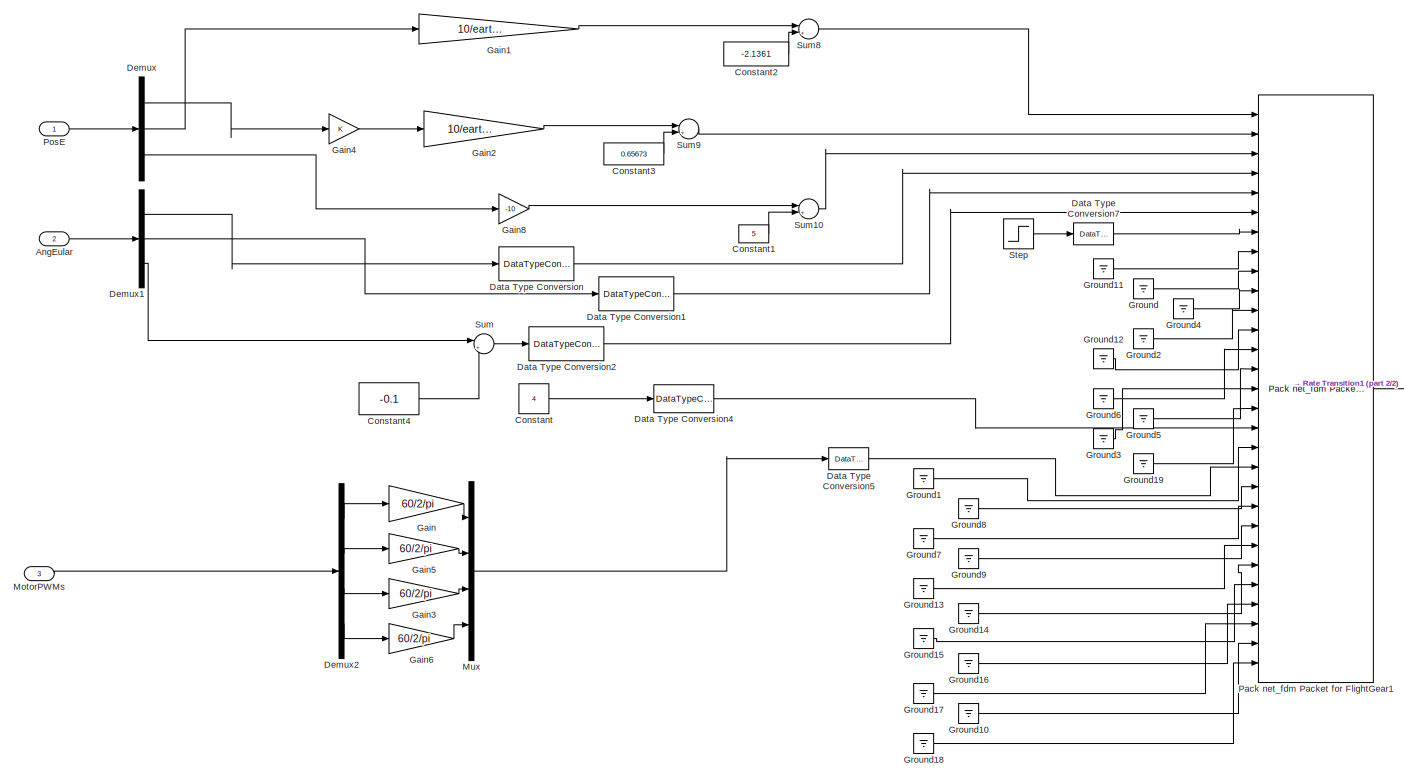
[diagram: To FlightGear - part 1/2, most of the canvas]
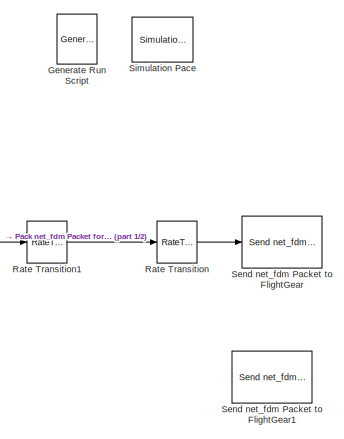
[diagram: To FlightGear - part 2/2, middle right region]
BLOCK [SubSystem] To FlightGear
  Ports = [3]
  RequestExecContextInheritance = off
  Variant = off
BLOCK [Inport] To FlightGear/AngEular
  IconDisplay = Port number
  Port = 2
BLOCK [Constant] To FlightGear/Constant
  Value = 4
BLOCK [Constant] To FlightGear/Constant1
  Value = 5
  VectorParams1D = off
BLOCK [Constant] To FlightGear/Constant2
  Value = -2.1361
  VectorParams1D = off
BLOCK [Constant] To FlightGear/Constant3
  Value = 0.65673
  VectorParams1D = off
BLOCK [Constant] To FlightGear/Constant4
  Value = -0.1
  VectorParams1D = off
BLOCK [DataTypeConversion] To FlightGear/Data Type Conversion
  OutDataTypeStr = single
  RndMeth = Floor
BLOCK [DataTypeConversion] To FlightGear/Data Type Conversion1
  OutDataTypeStr = single
  RndMeth = Floor
BLOCK [DataTypeConversion] To FlightGear/Data Type Conversion2
  OutDataTypeStr = single
  RndMeth = Floor
BLOCK [DataTypeConversion] To FlightGear/Data Type Conversion4
  OutDataTypeStr = uint32
  RndMeth = Floor
  SaturateOnIntegerOverflow = off
BLOCK [DataTypeConversion] To FlightGear/Data Type Conversion5
  OutDataTypeStr = single
  RndMeth = Floor
  SaturateOnIntegerOverflow = off
BLOCK [DataTypeConversion] To FlightGear/Data Type Conversion7
  OutDataTypeStr = single
  RndMeth = Floor
  SaturateOnIntegerOverflow = off
BLOCK [Demux] To FlightGear/Demux
  DisplayOption = bar
  Outputs = 3
  Ports = [1, 3]
BLOCK [Demux] To FlightGear/Demux1
  DisplayOption = bar
  Outputs = 3
  Ports = [1, 3]
BLOCK [Demux] To FlightGear/Demux2
  DisplayOption = bar
  Ports = [1, 4]
BLOCK [Gain] To FlightGear/Gain
  Gain = 60/2/pi
  OutDataTypeStr = Inherit: Inherit via internal rule
  ParamDataTypeStr = Inherit: Inherit via internal rule
  SaturateOnIntegerOverflow = off
BLOCK [Gain] To FlightGear/Gain1
  Gain = 10/earthRadius
  OutDataTypeStr = Inherit: Inherit via internal rule
  ParamDataTypeStr = Inherit: Inherit via internal rule
  SaturateOnIntegerOverflow = off
BLOCK [Gain] To FlightGear/Gain2
  Gain = 10/earthRadius
  OutDataTypeStr = Inherit: Inherit via internal rule
  ParamDataTypeStr = Inherit: Inherit via internal rule
  SaturateOnIntegerOverflow = off
BLOCK [Gain] To FlightGear/Gain3
  Gain = 60/2/pi
  OutDataTypeStr = Inherit: Inherit via internal rule
  ParamDataTypeStr = Inherit: Inherit via internal rule
  SaturateOnIntegerOverflow = off
BLOCK [Gain] To FlightGear/Gain4
  OutDataTypeStr = Inherit: Inherit via internal rule
  ParamDataTypeStr = Inherit: Inherit via internal rule
  SaturateOnIntegerOverflow = off
BLOCK [Gain] To FlightGear/Gain5
  Gain = 60/2/pi
  OutDataTypeStr = Inherit: Inherit via internal rule
  ParamDataTypeStr = Inherit: Inherit via internal rule
  SaturateOnIntegerOverflow = off
BLOCK [Gain] To FlightGear/Gain6
  Gain = 60/2/pi
  OutDataTypeStr = Inherit: Inherit via internal rule
  ParamDataTypeStr = Inherit: Inherit via internal rule
  SaturateOnIntegerOverflow = off
BLOCK [Gain] To FlightGear/Gain8
  Gain = -10
  OutDataTypeStr = Inherit: Inherit via internal rule
  ParamDataTypeStr = Inherit: Inherit via internal rule
  SaturateOnIntegerOverflow = off
BLOCK [Reference] To FlightGear/Generate Run Script  REF=aerolibfltsims/Generate
Run Script
  Ports = []
  SourceBlock = aerolibfltsims/Generate\nRun Script
  SourceProductBaseCode = AE
  SourceProductName = Aerospace Blockset
  SourceType = Generate FlightGear Run Script
BLOCK [Ground] To FlightGear/Ground
BLOCK [Ground] To FlightGear/Ground1
BLOCK [Ground] To FlightGear/Ground10
BLOCK [Ground] To FlightGear/Ground11
BLOCK [Ground] To FlightGear/Ground12
BLOCK [Ground] To FlightGear/Ground13
BLOCK [Ground] To FlightGear/Ground14
BLOCK [Ground] To FlightGear/Ground15
BLOCK [Ground] To FlightGear/Ground16
BLOCK [Ground] To FlightGear/Ground17
BLOCK [Ground] To FlightGear/Ground18
BLOCK [Ground] To FlightGear/Ground19
BLOCK [Ground] To FlightGear/Ground2
BLOCK [Ground] To FlightGear/Ground3
BLOCK [Ground] To FlightGear/Ground4
BLOCK [Ground] To FlightGear/Ground5
BLOCK [Ground] To FlightGear/Ground6
BLOCK [Ground] To FlightGear/Ground7
BLOCK [Ground] To FlightGear/Ground8
BLOCK [Ground] To FlightGear/Ground9
BLOCK [Inport] To FlightGear/MotorPWMs
  IconDisplay = Port number
  Port = 3
BLOCK [Mux] To FlightGear/Mux
  DisplayOption = bar
  Ports = [4, 1]
BLOCK [Reference] To FlightGear/Pack net_fdm Packet for FlightGear1  REF=aerolibfltsims/Pack
net_fdm Packet
for FlightGear
  AttributesFormatString = Version Selected: %<FlightGearVersion>
  Ports = [29, 1]
  SourceBlock = aerolibfltsims/Pack\nnet_fdm Packet\nfor FlightGear
  SourceProductBaseCode = AE
  SourceProductName = Aerospace Blockset
  SourceType = FlightGearPackNetFdm
BLOCK [Inport] To FlightGear/PosE
  IconDisplay = Port number
BLOCK [RateTransition] To FlightGear/Rate Transition
BLOCK [RateTransition] To FlightGear/Rate Transition1
BLOCK [Reference] To FlightGear/Send net_fdm Packet to FlightGear  REF=aerolibfltsims/Send
net_fdm Packet
to FlightGear
  Ports = [1]
  SourceBlock = aerolibfltsims/Send\nnet_fdm Packet\nto FlightGear
  SourceProductBaseCode = AE
  SourceProductName = Aerospace Blockset
  SourceType = FlightGearSendNetFdm
BLOCK [Reference] To FlightGear/Send net_fdm Packet to FlightGear1  REF=aerolibfltsims/Send
net_fdm Packet
to FlightGear
  Commented = on
  Ports = [1]
  SourceBlock = aerolibfltsims/Send\nnet_fdm Packet\nto FlightGear
  SourceProductBaseCode = AE
  SourceProductName = Aerospace Blockset
  SourceType = FlightGearSendNetFdm
BLOCK [Reference] To FlightGear/Simulation Pace  REF=aerolibanimutils/Simulation Pace
  AttributesFormatString = %<SimulationPace> sec/sec
  Ports = []
  SourceBlock = aerolibanimutils/Simulation Pace
  SourceProductBaseCode = AE
  SourceProductName = Aerospace Blockset
  SourceType = Simulation Pace
BLOCK [Step] To FlightGear/Step
  SampleTime = 0
  Time = 5
BLOCK [Sum] To FlightGear/Sum
  IconShape = round
  InputSameDT = off
  Inputs = |++
  OutDataTypeStr = Inherit: Inherit via internal rule
  Ports = [2, 1]
  SaturateOnIntegerOverflow = off
BLOCK [Sum] To FlightGear/Sum10
  IconShape = round
  InputSameDT = off
  Inputs = |++
  OutDataTypeStr = Inherit: Inherit via internal rule
  Ports = [2, 1]
  SaturateOnIntegerOverflow = off
BLOCK [Sum] To FlightGear/Sum8
  IconShape = round
  InputSameDT = off
  Inputs = |++
  OutDataTypeStr = Inherit: Inherit via internal rule
  Ports = [2, 1]
  SaturateOnIntegerOverflow = off
BLOCK [Sum] To FlightGear/Sum9
  IconShape = round
  InputSameDT = off
  Inputs = |++
  OutDataTypeStr = Inherit: Inherit via internal rule
  Ports = [2, 1]
  SaturateOnIntegerOverflow = off
ANNOTATION (root): pitch
ANNOTATION (root): roll
ANNOTATION (root): thrust
ANNOTATION (root): yaw
ANNOTATION Quadcopter Dynamics: GPS经纬高
ANNOTATION Quadcopter Dynamics: 地面坐标系下位置
ANNOTATION Quadcopter Dynamics: 地面坐标系下速度
ANNOTATION Quadcopter Dynamics: 姿态四元数
ANNOTATION Quadcopter Dynamics: 机体加速度
ANNOTATION Quadcopter Dynamics: 机体角速度
ANNOTATION Quadcopter Dynamics: 欧拉角
ANNOTATION Quadcopter Dynamics: 电机转速
ANNOTATION Quadcopter Dynamics: 输入为8路1000~2000范围的信号
ANNOTATION Quadcopter Dynamics: 风速
ANNOTATION Quadcopter Dynamics/Separation of float Data1: 小数部分
LINE      CH3_THROTTLR :1 -> Control System1:3
LINE      CH4_YAW     :1 -> Control System1:4
LINE  CH2_PITCH :1 -> Control System1:2
LINE CH1_ROLL   :1 -> Control System1:1
LINE Ch5_MODE :1 -> Control System1:5
LINE Control System1/ :1 -> Control System1/Scope:1
LINE Control System1/AttitudeControl/          :1 -> Control System1/AttitudeControl/Sum17:1
LINE Control System1/AttitudeControl/  :1 -> Control System1/AttitudeControl/Demux13:1
LINE Control System1/AttitudeControl/ :1 -> Control System1/AttitudeControl/Demux10:1
LINE Control System1/AttitudeControl/Demux10:1 -> Control System1/AttitudeControl/Sum18:1
LINE Control System1/AttitudeControl/Demux10:2 -> Control System1/AttitudeControl/Sum19:1
LINE Control System1/AttitudeControl/Demux12:1 -> Control System1/AttitudeControl/Sum18:2
LINE Control System1/AttitudeControl/Demux12:2 -> Control System1/AttitudeControl/Sum19:2
LINE Control System1/AttitudeControl/Demux13:1 -> Control System1/AttitudeControl/Sum21:1
LINE Control System1/AttitudeControl/Demux13:2 -> Control System1/AttitudeControl/Sum22:1
LINE Control System1/AttitudeControl/Demux16:1 -> Control System1/AttitudeControl/Sum21:2
LINE Control System1/AttitudeControl/Demux16:2 -> Control System1/AttitudeControl/Sum22:2
LINE Control System1/AttitudeControl/Mux13:1 -> Control System1/AttitudeControl/  :1
LINE Control System1/AttitudeControl/Mux15:1 -> Control System1/AttitudeControl/ :1
LINE Control System1/AttitudeControl/Mux22:1 -> Control System1/AttitudeControl/Demux16:1
LINE Control System1/AttitudeControl/Sum17:1 -> Control System1/AttitudeControl/yaw_rate:1
LINE Control System1/AttitudeControl/Sum18:1 -> Control System1/AttitudeControl/roll_attitude:1
LINE Control System1/AttitudeControl/Sum19:1 -> Control System1/AttitudeControl/pitch_attitude:1
LINE Control System1/AttitudeControl/Sum21:1 -> Control System1/AttitudeControl/roll_rate:1
LINE Control System1/AttitudeControl/Sum22:1 -> Control System1/AttitudeControl/pitch_rate:1
LINE Control System1/AttitudeControl/p:1 -> Control System1/AttitudeControl/Mux13:1
LINE Control System1/AttitudeControl/phi:1 -> Control System1/AttitudeControl/Mux15:1
LINE Control System1/AttitudeControl/pitch_attitude:1 -> Control System1/AttitudeControl/Mux22:2
LINE Control System1/AttitudeControl/pitch_rate:1 -> Control System1/AttitudeControl/Pitch:1
LINE Control System1/AttitudeControl/q:1 -> Control System1/AttitudeControl/Mux13:2
LINE Control System1/AttitudeControl/r:1 -> Control System1/AttitudeControl/          :1
LINE Control System1/AttitudeControl/roll_attitude:1 -> Control System1/AttitudeControl/Mux22:1
LINE Control System1/AttitudeControl/roll_pitch:1 -> Control System1/AttitudeControl/Demux12:1
LINE Control System1/AttitudeControl/roll_rate:1 -> Control System1/AttitudeControl/Roll:1
LINE Control System1/AttitudeControl/theta:1 -> Control System1/AttitudeControl/Mux15:2
LINE Control System1/AttitudeControl/yaw:1 -> Control System1/AttitudeControl/Sum17:2
LINE Control System1/AttitudeControl/yaw_rate:1 -> Control System1/AttitudeControl/Yaw:1
LINE Control System1/AttitudeControl:1 -> Control System1/Gain:1
LINE Control System1/AttitudeControl:2 -> Control System1/Gain1:1
LINE Control System1/AttitudeControl:3 -> Control System1/Gain2:1
LINE Control System1/Constant2:1 -> Control System1/Mux:2
NET Control System1/Constant:1 -> Control System1/Sum1:2, Control System1/Sum:2
LINE Control System1/Conversion2:1 -> Control System1/InputConditioning:1
LINE Control System1/Conversion3:1 -> Control System1/InputConditioning:2
LINE Control System1/Conversion4:1 -> Control System1/InputConditioning:3
LINE Control System1/Conversion5:1 -> Control System1/InputConditioning:4
LINE Control System1/Conversion6:1 -> Control System1/LED :1
LINE Control System1/Demux:2 -> Control System1/Scope:2
LINE Control System1/Gain1:1 -> Control System1/pwm_out1:2
LINE Control System1/Gain2:1 -> Control System1/pwm_out1:3
LINE Control System1/Gain:1 -> Control System1/pwm_out1:1
LINE Control System1/InputConditioning/Fcn2:1 -> Control System1/InputConditioning/Saturation9:1
LINE Control System1/InputConditioning/Fcn5:1 -> Control System1/InputConditioning/Saturation8:1
LINE Control System1/InputConditioning/Fcn6:1 -> Control System1/InputConditioning/Saturation10:1
LINE Control System1/InputConditioning/Fcn7:1 -> Control System1/InputConditioning/Saturation7:1
LINE Control System1/InputConditioning/Gain2:1 -> Control System1/InputConditioning/Roll_Pitch:1
LINE Control System1/InputConditioning/Gain:1 -> Control System1/InputConditioning/Yaw:1
LINE Control System1/InputConditioning/MATLAB Function1:1 -> Control System1/InputConditioning/Fcn7:1
LINE Control System1/InputConditioning/MATLAB Function2:1 -> Control System1/InputConditioning/Fcn5:1
LINE Control System1/InputConditioning/MATLAB Function3:1 -> Control System1/InputConditioning/Fcn6:1
LINE Control System1/InputConditioning/MATLAB Function:1 -> Control System1/InputConditioning/Fcn2:1
LINE Control System1/InputConditioning/Mux21:1 -> Control System1/InputConditioning/Gain2:1
LINE Control System1/InputConditioning/Saturation10:1 -> Control System1/InputConditioning/Thrust:1
LINE Control System1/InputConditioning/Saturation7:1 -> Control System1/InputConditioning/Gain:1
LINE Control System1/InputConditioning/Saturation8:1 -> Control System1/InputConditioning/Mux21:2
LINE Control System1/InputConditioning/Saturation9:1 -> Control System1/InputConditioning/Mux21:1
LINE Control System1/InputConditioning/pitch:1 -> Control System1/InputConditioning/MATLAB Function2:1
LINE Control System1/InputConditioning/roll:1 -> Control System1/InputConditioning/MATLAB Function:1
LINE Control System1/InputConditioning/thrust:1 -> Control System1/InputConditioning/MATLAB Function3:1
LINE Control System1/InputConditioning/yaw:1 -> Control System1/InputConditioning/MATLAB Function1:1
NET Control System1/InputConditioning:1 -> Control System1/AttitudeControl:3, Control System1/Demux:1
LINE Control System1/InputConditioning:2 -> Control System1/AttitudeControl:4
LINE Control System1/InputConditioning:3 -> Control System1/pwm_out1:4
LINE Control System1/LED /Compare To Constant3:1 -> Control System1/LED /Out1:1
LINE Control System1/LED /In1:1 -> Control System1/LED /Compare To Constant3:1
LINE Control System1/LED :1 -> Control System1/LED:1
LINE Control System1/Mux12:1 -> Control System1/Output_Limits1:1
LINE Control System1/Mux:1 -> Control System1/PWM:1
LINE Control System1/Output_Limits1:1 -> Control System1/Mux:1
NET Control System1/Sum1:1 -> Control System1/ :1, Control System1/AttitudeControl:2
LINE Control System1/Sum:1 -> Control System1/AttitudeControl:1
LINE Control System1/ch1:1 -> Control System1/Conversion2:1
LINE Control System1/ch2:1 -> Control System1/Conversion3:1
LINE Control System1/ch3:1 -> Control System1/Conversion4:1
LINE Control System1/ch4:1 -> Control System1/Conversion5:1
LINE Control System1/ch5:1 -> Control System1/Conversion6:1
LINE Control System1/p:1 -> Control System1/AttitudeControl:5
LINE Control System1/phi:1 -> Control System1/Sum:1
LINE Control System1/pwm_out1:1 -> Control System1/Mux12:1
LINE Control System1/pwm_out1:2 -> Control System1/Mux12:2
LINE Control System1/pwm_out1:3 -> Control System1/Mux12:3
LINE Control System1/pwm_out1:4 -> Control System1/Mux12:4
LINE Control System1/q:1 -> Control System1/AttitudeControl:6
LINE Control System1/r:1 -> Control System1/AttitudeControl:7
LINE Control System1/theta:1 -> Control System1/Sum1:1
LINE Control System1:1 -> Quadcopter Dynamics:1
LINE Control System1:2 -> Terminator:1
LINE Demux1:1 -> Control System1:9
LINE Demux1:2 -> Control System1:10
LINE Demux1:3 -> Terminator4:1
LINE Demux:1 -> Control System1:6
LINE Demux:2 -> Control System1:7
LINE Demux:3 -> Control System1:8
LINE Quadcopter Dynamics/6DOF/Bus Creator:1 -> Quadcopter Dynamics/6DOF/6DOF Bus:1
LINE Quadcopter Dynamics/6DOF/Bus Selector1:1 -> Quadcopter Dynamics/6DOF/Custom Variable Mass 6DOF (Quaternion):1
LINE Quadcopter Dynamics/6DOF/Bus Selector1:2 -> Quadcopter Dynamics/6DOF/Sum:1
LINE Quadcopter Dynamics/6DOF/Bus Selector:1 -> Quadcopter Dynamics/6DOF/Sum:2
LINE Quadcopter Dynamics/6DOF/Bus Selector:2 -> Quadcopter Dynamics/6DOF/Custom Variable Mass 6DOF (Quaternion):3
LINE Quadcopter Dynamics/6DOF/Bus Selector:3 -> Quadcopter Dynamics/6DOF/Custom Variable Mass 6DOF (Quaternion):5
LINE Quadcopter Dynamics/6DOF/Constant_dI//dt:1 -> Quadcopter Dynamics/6DOF/Custom Variable Mass 6DOF (Quaternion):4
LINE Quadcopter Dynamics/6DOF/Custom Variable Mass 6DOF (Quaternion):1 -> Quadcopter Dynamics/6DOF/Bus Creator:1
LINE Quadcopter Dynamics/6DOF/Custom Variable Mass 6DOF (Quaternion):2 -> Quadcopter Dynamics/6DOF/Bus Creator:2
LINE Quadcopter Dynamics/6DOF/Custom Variable Mass 6DOF (Quaternion):3 -> Quadcopter Dynamics/6DOF/Bus Creator:3
LINE Quadcopter Dynamics/6DOF/Custom Variable Mass 6DOF (Quaternion):4 -> Quadcopter Dynamics/6DOF/Bus Creator:4
LINE Quadcopter Dynamics/6DOF/Custom Variable Mass 6DOF (Quaternion):5 -> Quadcopter Dynamics/6DOF/Bus Creator:5
LINE Quadcopter Dynamics/6DOF/Custom Variable Mass 6DOF (Quaternion):6 -> Quadcopter Dynamics/6DOF/Bus Creator:6
LINE Quadcopter Dynamics/6DOF/Custom Variable Mass 6DOF (Quaternion):7 -> Quadcopter Dynamics/6DOF/Bus Creator:7
LINE Quadcopter Dynamics/6DOF/Custom Variable Mass 6DOF (Quaternion):8 -> Quadcopter Dynamics/6DOF/Terminator:1
LINE Quadcopter Dynamics/6DOF/Fail Model Bus:1 -> Quadcopter Dynamics/6DOF/Bus Selector:1
LINE Quadcopter Dynamics/6DOF/Force and Moment Model Bus:1 -> Quadcopter Dynamics/6DOF/Bus Selector1:1
LINE Quadcopter Dynamics/6DOF/Sum:1 -> Quadcopter Dynamics/6DOF/Custom Variable Mass 6DOF (Quaternion):2
NET Quadcopter Dynamics/6DOF:1 -> Quadcopter Dynamics/Environment Model:1, Quadcopter Dynamics/Fail Model:1, Quadcopter Dynamics/Force and Moment Model:3, Quadcopter Dynamics/OutputPort:5
LINE Quadcopter Dynamics/Battery Model/Battery Model_sfcn:1 -> Quadcopter Dynamics/Battery Model/__OutputSSForSFun__:1
LINE Quadcopter Dynamics/Battery Model/Battery Model_sfcn:2 -> Quadcopter Dynamics/Battery Model/__OutputSSForSFun__:2
LINE Quadcopter Dynamics/Battery Model/Battery Model_sfcn:3 -> Quadcopter Dynamics/Battery Model/__OutputSSForSFun__:3
LINE Quadcopter Dynamics/Battery Model/PWMin:1 -> Quadcopter Dynamics/Battery Model/__InputSSForSFun__:1
LINE Quadcopter Dynamics/Battery Model/__InputSSForSFun__/PWMin:1 -> Quadcopter Dynamics/Battery Model/__InputSSForSFun__/__UniqueOutportName__1__:1
LINE Quadcopter Dynamics/Battery Model/__InputSSForSFun__:1 -> Quadcopter Dynamics/Battery Model/Battery Model_sfcn:1
LINE Quadcopter Dynamics/Battery Model/__OutputSSForSFun__/Mux1:1 -> Quadcopter Dynamics/Battery Model/__OutputSSForSFun__/Battery Model Bus:1
LINE Quadcopter Dynamics/Battery Model/__OutputSSForSFun__/__UniqueInportName__1__:1 -> Quadcopter Dynamics/Battery Model/__OutputSSForSFun__/Mux1:1
LINE Quadcopter Dynamics/Battery Model/__OutputSSForSFun__/__UniqueInportName__2__:1 -> Quadcopter Dynamics/Battery Model/__OutputSSForSFun__/Mux1:2
LINE Quadcopter Dynamics/Battery Model/__OutputSSForSFun__/__UniqueInportName__3__:1 -> Quadcopter Dynamics/Battery Model/__OutputSSForSFun__/Mux1:3
LINE Quadcopter Dynamics/Battery Model/__OutputSSForSFun__:1 -> Quadcopter Dynamics/Battery Model/Battery Model Bus:1
NET Quadcopter Dynamics/Battery Model:1 -> Quadcopter Dynamics/Motor Model:1, Quadcopter Dynamics/OutputPort:7
LINE Quadcopter Dynamics/Bus Selector3:1 -> Quadcopter Dynamics/Data Type Conversion:1
LINE Quadcopter Dynamics/Constant1:1 -> Quadcopter Dynamics/Rate Transition1:1
LINE Quadcopter Dynamics/Constant4:1 -> Quadcopter Dynamics/Sum3:2
LINE Quadcopter Dynamics/Data Type Conversion:1 -> Quadcopter Dynamics/Separation of float Data1:1
LINE Quadcopter Dynamics/Environment Model/6DOF Bus:1 -> Quadcopter Dynamics/Environment Model/__InputSSForSFun__:1
LINE Quadcopter Dynamics/Environment Model/Environment Model_sfcn:1 -> Quadcopter Dynamics/Environment Model/__OutputSSForSFun__:1
LINE Quadcopter Dynamics/Environment Model/Environment Model_sfcn:2 -> Quadcopter Dynamics/Environment Model/__OutputSSForSFun__:2
LINE Quadcopter Dynamics/Environment Model/Environment Model_sfcn:3 -> Quadcopter Dynamics/Environment Model/__OutputSSForSFun__:3
LINE Quadcopter Dynamics/Environment Model/Environment Model_sfcn:4 -> Quadcopter Dynamics/Environment Model/__OutputSSForSFun__:4
LINE Quadcopter Dynamics/Environment Model/Environment Model_sfcn:5 -> Quadcopter Dynamics/Environment Model/__OutputSSForSFun__:5
LINE Quadcopter Dynamics/Environment Model/Environment Model_sfcn:6 -> Quadcopter Dynamics/Environment Model/__OutputSSForSFun__:6
LINE Quadcopter Dynamics/Environment Model/Environment Model_sfcn:7 -> Quadcopter Dynamics/Environment Model/__OutputSSForSFun__:7
LINE Quadcopter Dynamics/Environment Model/__InputSSForSFun__/6DOF Bus:1 -> Quadcopter Dynamics/Environment Model/__InputSSForSFun__/temporaryBusSelectName_1:1
LINE Quadcopter Dynamics/Environment Model/__InputSSForSFun__/temporaryBusSelectName_1:1 -> Quadcopter Dynamics/Environment Model/__InputSSForSFun__/__UniqueOutportName__1__:1
LINE Quadcopter Dynamics/Environment Model/__InputSSForSFun__/temporaryBusSelectName_1:2 -> Quadcopter Dynamics/Environment Model/__InputSSForSFun__/__UniqueOutportName__2__:1
LINE Quadcopter Dynamics/Environment Model/__InputSSForSFun__/temporaryBusSelectName_1:3 -> Quadcopter Dynamics/Environment Model/__InputSSForSFun__/__UniqueOutportName__3__:1
LINE Quadcopter Dynamics/Environment Model/__InputSSForSFun__/temporaryBusSelectName_1:4 -> Quadcopter Dynamics/Environment Model/__InputSSForSFun__/__UniqueOutportName__4__:1
LINE Quadcopter Dynamics/Environment Model/__InputSSForSFun__/temporaryBusSelectName_1:5 -> Quadcopter Dynamics/Environment Model/__InputSSForSFun__/__UniqueOutportName__5__:1
LINE Quadcopter Dynamics/Environment Model/__InputSSForSFun__/temporaryBusSelectName_1:6 -> Quadcopter Dynamics/Environment Model/__InputSSForSFun__/__UniqueOutportName__6__:1
LINE Quadcopter Dynamics/Environment Model/__InputSSForSFun__/temporaryBusSelectName_1:7 -> Quadcopter Dynamics/Environment Model/__InputSSForSFun__/__UniqueOutportName__7__:1
LINE Quadcopter Dynamics/Environment Model/__InputSSForSFun__:1 -> Quadcopter Dynamics/Environment Model/Environment Model_sfcn:1
LINE Quadcopter Dynamics/Environment Model/__InputSSForSFun__:2 -> Quadcopter Dynamics/Environment Model/Environment Model_sfcn:2
LINE Quadcopter Dynamics/Environment Model/__InputSSForSFun__:3 -> Quadcopter Dynamics/Environment Model/Environment Model_sfcn:3
LINE Quadcopter Dynamics/Environment Model/__InputSSForSFun__:4 -> Quadcopter Dynamics/Environment Model/Environment Model_sfcn:4
LINE Quadcopter Dynamics/Environment Model/__InputSSForSFun__:5 -> Quadcopter Dynamics/Environment Model/Environment Model_sfcn:5
LINE Quadcopter Dynamics/Environment Model/__InputSSForSFun__:6 -> Quadcopter Dynamics/Environment Model/Environment Model_sfcn:6
LINE Quadcopter Dynamics/Environment Model/__InputSSForSFun__:7 -> Quadcopter Dynamics/Environment Model/Environment Model_sfcn:7
LINE Quadcopter Dynamics/Environment Model/__OutputSSForSFun__/Mux1:1 -> Quadcopter Dynamics/Environment Model/__OutputSSForSFun__/Environment Model Bus:1
LINE Quadcopter Dynamics/Environment Model/__OutputSSForSFun__/__UniqueInportName__1__:1 -> Quadcopter Dynamics/Environment Model/__OutputSSForSFun__/Mux1:1
LINE Quadcopter Dynamics/Environment Model/__OutputSSForSFun__/__UniqueInportName__2__:1 -> Quadcopter Dynamics/Environment Model/__OutputSSForSFun__/Mux1:2
LINE Quadcopter Dynamics/Environment Model/__OutputSSForSFun__/__UniqueInportName__3__:1 -> Quadcopter Dynamics/Environment Model/__OutputSSForSFun__/Mux1:3
LINE Quadcopter Dynamics/Environment Model/__OutputSSForSFun__/__UniqueInportName__4__:1 -> Quadcopter Dynamics/Environment Model/__OutputSSForSFun__/Mux1:4
LINE Quadcopter Dynamics/Environment Model/__OutputSSForSFun__/__UniqueInportName__5__:1 -> Quadcopter Dynamics/Environment Model/__OutputSSForSFun__/Mux1:5
LINE Quadcopter Dynamics/Environment Model/__OutputSSForSFun__/__UniqueInportName__6__:1 -> Quadcopter Dynamics/Environment Model/__OutputSSForSFun__/Mux1:6
LINE Quadcopter Dynamics/Environment Model/__OutputSSForSFun__/__UniqueInportName__7__:1 -> Quadcopter Dynamics/Environment Model/__OutputSSForSFun__/Mux1:7
LINE Quadcopter Dynamics/Environment Model/__OutputSSForSFun__:1 -> Quadcopter Dynamics/Environment Model/Environment Model Bus:1
NET Quadcopter Dynamics/Environment Model:1 -> Quadcopter Dynamics/Force and Moment Model:2, Quadcopter Dynamics/OutputPort:1
LINE Quadcopter Dynamics/Fail Model/6DOF Bus:1 -> Quadcopter Dynamics/Fail Model/__InputSSForSFun__:1
LINE Quadcopter Dynamics/Fail Model/Fail Model_sfcn:1 -> Quadcopter Dynamics/Fail Model/__OutputSSForSFun__:1
LINE Quadcopter Dynamics/Fail Model/Fail Model_sfcn:2 -> Quadcopter Dynamics/Fail Model/__OutputSSForSFun__:2
LINE Quadcopter Dynamics/Fail Model/Fail Model_sfcn:3 -> Quadcopter Dynamics/Fail Model/__OutputSSForSFun__:3
LINE Quadcopter Dynamics/Fail Model/__InputSSForSFun__/6DOF Bus:1 -> Quadcopter Dynamics/Fail Model/__InputSSForSFun__/temporaryBusSelectName_1:1
LINE Quadcopter Dynamics/Fail Model/__InputSSForSFun__/temporaryBusSelectName_1:1 -> Quadcopter Dynamics/Fail Model/__InputSSForSFun__/__UniqueOutportName__1__:1
LINE Quadcopter Dynamics/Fail Model/__InputSSForSFun__/temporaryBusSelectName_1:2 -> Quadcopter Dynamics/Fail Model/__InputSSForSFun__/__UniqueOutportName__2__:1
LINE Quadcopter Dynamics/Fail Model/__InputSSForSFun__/temporaryBusSelectName_1:3 -> Quadcopter Dynamics/Fail Model/__InputSSForSFun__/__UniqueOutportName__3__:1
LINE Quadcopter Dynamics/Fail Model/__InputSSForSFun__/temporaryBusSelectName_1:4 -> Quadcopter Dynamics/Fail Model/__InputSSForSFun__/__UniqueOutportName__4__:1
LINE Quadcopter Dynamics/Fail Model/__InputSSForSFun__/temporaryBusSelectName_1:5 -> Quadcopter Dynamics/Fail Model/__InputSSForSFun__/__UniqueOutportName__5__:1
LINE Quadcopter Dynamics/Fail Model/__InputSSForSFun__/temporaryBusSelectName_1:6 -> Quadcopter Dynamics/Fail Model/__InputSSForSFun__/__UniqueOutportName__6__:1
LINE Quadcopter Dynamics/Fail Model/__InputSSForSFun__/temporaryBusSelectName_1:7 -> Quadcopter Dynamics/Fail Model/__InputSSForSFun__/__UniqueOutportName__7__:1
LINE Quadcopter Dynamics/Fail Model/__InputSSForSFun__:1 -> Quadcopter Dynamics/Fail Model/Fail Model_sfcn:1
LINE Quadcopter Dynamics/Fail Model/__InputSSForSFun__:2 -> Quadcopter Dynamics/Fail Model/Fail Model_sfcn:2
LINE Quadcopter Dynamics/Fail Model/__InputSSForSFun__:3 -> Quadcopter Dynamics/Fail Model/Fail Model_sfcn:3
LINE Quadcopter Dynamics/Fail Model/__InputSSForSFun__:4 -> Quadcopter Dynamics/Fail Model/Fail Model_sfcn:4
LINE Quadcopter Dynamics/Fail Model/__InputSSForSFun__:5 -> Quadcopter Dynamics/Fail Model/Fail Model_sfcn:5
LINE Quadcopter Dynamics/Fail Model/__InputSSForSFun__:6 -> Quadcopter Dynamics/Fail Model/Fail Model_sfcn:6
LINE Quadcopter Dynamics/Fail Model/__InputSSForSFun__:7 -> Quadcopter Dynamics/Fail Model/Fail Model_sfcn:7
LINE Quadcopter Dynamics/Fail Model/__OutputSSForSFun__/Mux1:1 -> Quadcopter Dynamics/Fail Model/__OutputSSForSFun__/Fail Model Bus:1
LINE Quadcopter Dynamics/Fail Model/__OutputSSForSFun__/__UniqueInportName__1__:1 -> Quadcopter Dynamics/Fail Model/__OutputSSForSFun__/Mux1:1
LINE Quadcopter Dynamics/Fail Model/__OutputSSForSFun__/__UniqueInportName__2__:1 -> Quadcopter Dynamics/Fail Model/__OutputSSForSFun__/Mux1:2
LINE Quadcopter Dynamics/Fail Model/__OutputSSForSFun__/__UniqueInportName__3__:1 -> Quadcopter Dynamics/Fail Model/__OutputSSForSFun__/Mux1:3
LINE Quadcopter Dynamics/Fail Model/__OutputSSForSFun__:1 -> Quadcopter Dynamics/Fail Model/Fail Model Bus:1
NET Quadcopter Dynamics/Fail Model:1 -> Quadcopter Dynamics/6DOF:2, Quadcopter Dynamics/Force and Moment Model:4, Quadcopter Dynamics/OutputPort:6
LINE Quadcopter Dynamics/Force and Moment Model/6DOF Bus:1 -> Quadcopter Dynamics/Force and Moment Model/__InputSSForSFun__:3
LINE Quadcopter Dynamics/Force and Moment Model/Environment Model Bus:1 -> Quadcopter Dynamics/Force and Moment Model/__InputSSForSFun__:2
LINE Quadcopter Dynamics/Force and Moment Model/Fail Model Bus:1 -> Quadcopter Dynamics/Force and Moment Model/__InputSSForSFun__:4
LINE Quadcopter Dynamics/Force and Moment Model/Force and Moment Model_sfcn:1 -> Quadcopter Dynamics/Force and Moment Model/__OutputSSForSFun__:1
LINE Quadcopter Dynamics/Force and Moment Model/Force and Moment Model_sfcn:2 -> Quadcopter Dynamics/Force and Moment Model/__OutputSSForSFun__:2
LINE Quadcopter Dynamics/Force and Moment Model/Force and Moment Model_sfcn:3 -> Quadcopter Dynamics/Force and Moment Model/__OutputSSForSFun__:3
LINE Quadcopter Dynamics/Force and Moment Model/MotorRads:1 -> Quadcopter Dynamics/Force and Moment Model/__InputSSForSFun__:1
LINE Quadcopter Dynamics/Force and Moment Model/__InputSSForSFun__/6DOF Bus:1 -> Quadcopter Dynamics/Force and Moment Model/__InputSSForSFun__/temporaryBusSelectName_2:1
LINE Quadcopter Dynamics/Force and Moment Model/__InputSSForSFun__/Environment Model Bus:1 -> Quadcopter Dynamics/Force and Moment Model/__InputSSForSFun__/temporaryBusSelectName_1:1
LINE Quadcopter Dynamics/Force and Moment Model/__InputSSForSFun__/Fail Model Bus:1 -> Quadcopter Dynamics/Force and Moment Model/__InputSSForSFun__/temporaryBusSelectName_3:1
LINE Quadcopter Dynamics/Force and Moment Model/__InputSSForSFun__/MotorRads:1 -> Quadcopter Dynamics/Force and Moment Model/__InputSSForSFun__/__UniqueOutportName__1__:1
LINE Quadcopter Dynamics/Force and Moment Model/__InputSSForSFun__/tZ :1 -> Quadcopter Dynamics/Force and Moment Model/__InputSSForSFun__/__UniqueOutportName__19__:1
LINE Quadcopter Dynamics/Force and Moment Model/__InputSSForSFun__/temporaryBusSelectName_1:1 -> Quadcopter Dynamics/Force and Moment Model/__InputSSForSFun__/__UniqueOutportName__2__:1
LINE Quadcopter Dynamics/Force and Moment Model/__InputSSForSFun__/temporaryBusSelectName_1:2 -> Quadcopter Dynamics/Force and Moment Model/__InputSSForSFun__/__UniqueOutportName__3__:1
LINE Quadcopter Dynamics/Force and Moment Model/__InputSSForSFun__/temporaryBusSelectName_1:3 -> Quadcopter Dynamics/Force and Moment Model/__InputSSForSFun__/__UniqueOutportName__4__:1
LINE Quadcopter Dynamics/Force and Moment Model/__InputSSForSFun__/temporaryBusSelectName_1:4 -> Quadcopter Dynamics/Force and Moment Model/__InputSSForSFun__/__UniqueOutportName__5__:1
LINE Quadcopter Dynamics/Force and Moment Model/__InputSSForSFun__/temporaryBusSelectName_1:5 -> Quadcopter Dynamics/Force and Moment Model/__InputSSForSFun__/__UniqueOutportName__6__:1
LINE Quadcopter Dynamics/Force and Moment Model/__InputSSForSFun__/temporaryBusSelectName_1:6 -> Quadcopter Dynamics/Force and Moment Model/__InputSSForSFun__/__UniqueOutportName__7__:1
LINE Quadcopter Dynamics/Force and Moment Model/__InputSSForSFun__/temporaryBusSelectName_1:7 -> Quadcopter Dynamics/Force and Moment Model/__InputSSForSFun__/__UniqueOutportName__8__:1
LINE Quadcopter Dynamics/Force and Moment Model/__InputSSForSFun__/temporaryBusSelectName_2:1 -> Quadcopter Dynamics/Force and Moment Model/__InputSSForSFun__/__UniqueOutportName__9__:1
LINE Quadcopter Dynamics/Force and Moment Model/__InputSSForSFun__/temporaryBusSelectName_2:2 -> Quadcopter Dynamics/Force and Moment Model/__InputSSForSFun__/__UniqueOutportName__10__:1
LINE Quadcopter Dynamics/Force and Moment Model/__InputSSForSFun__/temporaryBusSelectName_2:3 -> Quadcopter Dynamics/Force and Moment Model/__InputSSForSFun__/__UniqueOutportName__11__:1
LINE Quadcopter Dynamics/Force and Moment Model/__InputSSForSFun__/temporaryBusSelectName_2:4 -> Quadcopter Dynamics/Force and Moment Model/__InputSSForSFun__/__UniqueOutportName__12__:1
LINE Quadcopter Dynamics/Force and Moment Model/__InputSSForSFun__/temporaryBusSelectName_2:5 -> Quadcopter Dynamics/Force and Moment Model/__InputSSForSFun__/__UniqueOutportName__13__:1
LINE Quadcopter Dynamics/Force and Moment Model/__InputSSForSFun__/temporaryBusSelectName_2:6 -> Quadcopter Dynamics/Force and Moment Model/__InputSSForSFun__/__UniqueOutportName__14__:1
LINE Quadcopter Dynamics/Force and Moment Model/__InputSSForSFun__/temporaryBusSelectName_2:7 -> Quadcopter Dynamics/Force and Moment Model/__InputSSForSFun__/__UniqueOutportName__15__:1
LINE Quadcopter Dynamics/Force and Moment Model/__InputSSForSFun__/temporaryBusSelectName_3:1 -> Quadcopter Dynamics/Force and Moment Model/__InputSSForSFun__/__UniqueOutportName__16__:1
LINE Quadcopter Dynamics/Force and Moment Model/__InputSSForSFun__/temporaryBusSelectName_3:2 -> Quadcopter Dynamics/Force and Moment Model/__InputSSForSFun__/__UniqueOutportName__17__:1
LINE Quadcopter Dynamics/Force and Moment Model/__InputSSForSFun__/temporaryBusSelectName_3:3 -> Quadcopter Dynamics/Force and Moment Model/__InputSSForSFun__/__UniqueOutportName__18__:1
LINE Quadcopter Dynamics/Force and Moment Model/__InputSSForSFun__:1 -> Quadcopter Dynamics/Force and Moment Model/Force and Moment Model_sfcn:1
LINE Quadcopter Dynamics/Force and Moment Model/__InputSSForSFun__:10 -> Quadcopter Dynamics/Force and Moment Model/Force and Moment Model_sfcn:10
LINE Quadcopter Dynamics/Force and Moment Model/__InputSSForSFun__:11 -> Quadcopter Dynamics/Force and Moment Model/Force and Moment Model_sfcn:11
LINE Quadcopter Dynamics/Force and Moment Model/__InputSSForSFun__:12 -> Quadcopter Dynamics/Force and Moment Model/Force and Moment Model_sfcn:12
LINE Quadcopter Dynamics/Force and Moment Model/__InputSSForSFun__:13 -> Quadcopter Dynamics/Force and Moment Model/Force and Moment Model_sfcn:13
LINE Quadcopter Dynamics/Force and Moment Model/__InputSSForSFun__:14 -> Quadcopter Dynamics/Force and Moment Model/Force and Moment Model_sfcn:14
LINE Quadcopter Dynamics/Force and Moment Model/__InputSSForSFun__:15 -> Quadcopter Dynamics/Force and Moment Model/Force and Moment Model_sfcn:15
LINE Quadcopter Dynamics/Force and Moment Model/__InputSSForSFun__:16 -> Quadcopter Dynamics/Force and Moment Model/Force and Moment Model_sfcn:16
LINE Quadcopter Dynamics/Force and Moment Model/__InputSSForSFun__:17 -> Quadcopter Dynamics/Force and Moment Model/Force and Moment Model_sfcn:17
LINE Quadcopter Dynamics/Force and Moment Model/__InputSSForSFun__:18 -> Quadcopter Dynamics/Force and Moment Model/Force and Moment Model_sfcn:18
LINE Quadcopter Dynamics/Force and Moment Model/__InputSSForSFun__:19 -> Quadcopter Dynamics/Force and Moment Model/Force and Moment Model_sfcn:19
LINE Quadcopter Dynamics/Force and Moment Model/__InputSSForSFun__:2 -> Quadcopter Dynamics/Force and Moment Model/Force and Moment Model_sfcn:2
LINE Quadcopter Dynamics/Force and Moment Model/__InputSSForSFun__:3 -> Quadcopter Dynamics/Force and Moment Model/Force and Moment Model_sfcn:3
LINE Quadcopter Dynamics/Force and Moment Model/__InputSSForSFun__:4 -> Quadcopter Dynamics/Force and Moment Model/Force and Moment Model_sfcn:4
LINE Quadcopter Dynamics/Force and Moment Model/__InputSSForSFun__:5 -> Quadcopter Dynamics/Force and Moment Model/Force and Moment Model_sfcn:5
LINE Quadcopter Dynamics/Force and Moment Model/__InputSSForSFun__:6 -> Quadcopter Dynamics/Force and Moment Model/Force and Moment Model_sfcn:6
LINE Quadcopter Dynamics/Force and Moment Model/__InputSSForSFun__:7 -> Quadcopter Dynamics/Force and Moment Model/Force and Moment Model_sfcn:7
LINE Quadcopter Dynamics/Force and Moment Model/__InputSSForSFun__:8 -> Quadcopter Dynamics/Force and Moment Model/Force and Moment Model_sfcn:8
LINE Quadcopter Dynamics/Force and Moment Model/__InputSSForSFun__:9 -> Quadcopter Dynamics/Force and Moment Model/Force and Moment Model_sfcn:9
LINE Quadcopter Dynamics/Force and Moment Model/__OutputSSForSFun__/Mux1:1 -> Quadcopter Dynamics/Force and Moment Model/__OutputSSForSFun__/Force and Moment Model Bus:1
LINE Quadcopter Dynamics/Force and Moment Model/__OutputSSForSFun__/__UniqueInportName__1__:1 -> Quadcopter Dynamics/Force and Moment Model/__OutputSSForSFun__/Mux1:1
LINE Quadcopter Dynamics/Force and Moment Model/__OutputSSForSFun__/__UniqueInportName__2__:1 -> Quadcopter Dynamics/Force and Moment Model/__OutputSSForSFun__/Mux1:2
LINE Quadcopter Dynamics/Force and Moment Model/__OutputSSForSFun__/__UniqueInportName__3__:1 -> Quadcopter Dynamics/Force and Moment Model/__OutputSSForSFun__/Mux1:3
LINE Quadcopter Dynamics/Force and Moment Model/__OutputSSForSFun__:1 -> Quadcopter Dynamics/Force and Moment Model/Force and Moment Model Bus:1
LINE Quadcopter Dynamics/Force and Moment Model/tZ :1 -> Quadcopter Dynamics/Force and Moment Model/__InputSSForSFun__:5
NET Quadcopter Dynamics/Force and Moment Model:1 -> Quadcopter Dynamics/6DOF:1, Quadcopter Dynamics/OutputPort:4
LINE Quadcopter Dynamics/Gain1:1 -> Quadcopter Dynamics/Rate Transition:1
LINE Quadcopter Dynamics/Motor Model/Battery Model Bus:1 -> Quadcopter Dynamics/Motor Model/__InputSSForSFun__:1
LINE Quadcopter Dynamics/Motor Model/Motor Model_sfcn:1 -> Quadcopter Dynamics/Motor Model/__OutputSSForSFun__:1
LINE Quadcopter Dynamics/Motor Model/__InputSSForSFun__/Battery Model Bus:1 -> Quadcopter Dynamics/Motor Model/__InputSSForSFun__/temporaryBusSelectName_1:1
LINE Quadcopter Dynamics/Motor Model/__InputSSForSFun__/temporaryBusSelectName_1:1 -> Quadcopter Dynamics/Motor Model/__InputSSForSFun__/__UniqueOutportName__1__:1
LINE Quadcopter Dynamics/Motor Model/__InputSSForSFun__/temporaryBusSelectName_1:2 -> Quadcopter Dynamics/Motor Model/__InputSSForSFun__/__UniqueOutportName__2__:1
LINE Quadcopter Dynamics/Motor Model/__InputSSForSFun__/temporaryBusSelectName_1:3 -> Quadcopter Dynamics/Motor Model/__InputSSForSFun__/__UniqueOutportName__3__:1
LINE Quadcopter Dynamics/Motor Model/__InputSSForSFun__:1 -> Quadcopter Dynamics/Motor Model/Motor Model_sfcn:1
LINE Quadcopter Dynamics/Motor Model/__InputSSForSFun__:2 -> Quadcopter Dynamics/Motor Model/Motor Model_sfcn:2
LINE Quadcopter Dynamics/Motor Model/__InputSSForSFun__:3 -> Quadcopter Dynamics/Motor Model/Motor Model_sfcn:3
LINE Quadcopter Dynamics/Motor Model/__OutputSSForSFun__/__UniqueInportName__1__:1 -> Quadcopter Dynamics/Motor Model/__OutputSSForSFun__/MotorRads:1
LINE Quadcopter Dynamics/Motor Model/__OutputSSForSFun__:1 -> Quadcopter Dynamics/Motor Model/MotorRads:1
NET Quadcopter Dynamics/Motor Model:1 -> Quadcopter Dynamics/Force and Moment Model:1, Quadcopter Dynamics/OutputPort:2
LINE Quadcopter Dynamics/OutputPort/6DOF Bus:1 -> Quadcopter Dynamics/OutputPort/__InputSSForSFun__:5
LINE Quadcopter Dynamics/OutputPort/Battery Model Bus:1 -> Quadcopter Dynamics/OutputPort/__InputSSForSFun__:7
LINE Quadcopter Dynamics/OutputPort/Environment Model Bus:1 -> Quadcopter Dynamics/OutputPort/__InputSSForSFun__:1
LINE Quadcopter Dynamics/OutputPort/Fail Model Bus:1 -> Quadcopter Dynamics/OutputPort/__InputSSForSFun__:6
LINE Quadcopter Dynamics/OutputPort/Force and Moment Model Bus:1 -> Quadcopter Dynamics/OutputPort/__InputSSForSFun__:4
LINE Quadcopter Dynamics/OutputPort/MotorRads:1 -> Quadcopter Dynamics/OutputPort/__InputSSForSFun__:2
LINE Quadcopter Dynamics/OutputPort/OutputPort_sfcn:1 -> Quadcopter Dynamics/OutputPort/__OutputSSForSFun__:1
LINE Quadcopter Dynamics/OutputPort/OutputPort_sfcn:10 -> Quadcopter Dynamics/OutputPort/__OutputSSForSFun__:10
LINE Quadcopter Dynamics/OutputPort/OutputPort_sfcn:11 -> Quadcopter Dynamics/OutputPort/__OutputSSForSFun__:11
LINE Quadcopter Dynamics/OutputPort/OutputPort_sfcn:12 -> Quadcopter Dynamics/OutputPort/__OutputSSForSFun__:12
LINE Quadcopter Dynamics/OutputPort/OutputPort_sfcn:13 -> Quadcopter Dynamics/OutputPort/__OutputSSForSFun__:13
LINE Quadcopter Dynamics/OutputPort/OutputPort_sfcn:14 -> Quadcopter Dynamics/OutputPort/__OutputSSForSFun__:14
LINE Quadcopter Dynamics/OutputPort/OutputPort_sfcn:15 -> Quadcopter Dynamics/OutputPort/__OutputSSForSFun__:15
LINE Quadcopter Dynamics/OutputPort/OutputPort_sfcn:16 -> Quadcopter Dynamics/OutputPort/__OutputSSForSFun__:16
LINE Quadcopter Dynamics/OutputPort/OutputPort_sfcn:17 -> Quadcopter Dynamics/OutputPort/__OutputSSForSFun__:17
LINE Quadcopter Dynamics/OutputPort/OutputPort_sfcn:18 -> Quadcopter Dynamics/OutputPort/__OutputSSForSFun__:18
LINE Quadcopter Dynamics/OutputPort/OutputPort_sfcn:19 -> Quadcopter Dynamics/OutputPort/__OutputSSForSFun__:19
LINE Quadcopter Dynamics/OutputPort/OutputPort_sfcn:2 -> Quadcopter Dynamics/OutputPort/__OutputSSForSFun__:2
LINE Quadcopter Dynamics/OutputPort/OutputPort_sfcn:3 -> Quadcopter Dynamics/OutputPort/__OutputSSForSFun__:3
LINE Quadcopter Dynamics/OutputPort/OutputPort_sfcn:4 -> Quadcopter Dynamics/OutputPort/__OutputSSForSFun__:4
LINE Quadcopter Dynamics/OutputPort/OutputPort_sfcn:5 -> Quadcopter Dynamics/OutputPort/__OutputSSForSFun__:5
LINE Quadcopter Dynamics/OutputPort/OutputPort_sfcn:6 -> Quadcopter Dynamics/OutputPort/__OutputSSForSFun__:6
LINE Quadcopter Dynamics/OutputPort/OutputPort_sfcn:7 -> Quadcopter Dynamics/OutputPort/__OutputSSForSFun__:7
LINE Quadcopter Dynamics/OutputPort/OutputPort_sfcn:8 -> Quadcopter Dynamics/OutputPort/__OutputSSForSFun__:8
LINE Quadcopter Dynamics/OutputPort/OutputPort_sfcn:9 -> Quadcopter Dynamics/OutputPort/__OutputSSForSFun__:9
LINE Quadcopter Dynamics/OutputPort/__InputSSForSFun__/6DOF Bus:1 -> Quadcopter Dynamics/OutputPort/__InputSSForSFun__/temporaryBusSelectName_3:1
LINE Quadcopter Dynamics/OutputPort/__InputSSForSFun__/Battery Model Bus:1 -> Quadcopter Dynamics/OutputPort/__InputSSForSFun__/temporaryBusSelectName_5:1
LINE Quadcopter Dynamics/OutputPort/__InputSSForSFun__/Environment Model Bus:1 -> Quadcopter Dynamics/OutputPort/__InputSSForSFun__/temporaryBusSelectName_1:1
LINE Quadcopter Dynamics/OutputPort/__InputSSForSFun__/Fail Model Bus:1 -> Quadcopter Dynamics/OutputPort/__InputSSForSFun__/temporaryBusSelectName_4:1
LINE Quadcopter Dynamics/OutputPort/__InputSSForSFun__/Force and Moment Model Bus:1 -> Quadcopter Dynamics/OutputPort/__InputSSForSFun__/temporaryBusSelectName_2:1
LINE Quadcopter Dynamics/OutputPort/__InputSSForSFun__/MotorRads:1 -> Quadcopter Dynamics/OutputPort/__InputSSForSFun__/__UniqueOutportName__8__:1
LINE Quadcopter Dynamics/OutputPort/__InputSSForSFun__/temporaryBusSelectName_1:1 -> Quadcopter Dynamics/OutputPort/__InputSSForSFun__/__UniqueOutportName__1__:1
LINE Quadcopter Dynamics/OutputPort/__InputSSForSFun__/temporaryBusSelectName_1:2 -> Quadcopter Dynamics/OutputPort/__InputSSForSFun__/__UniqueOutportName__2__:1
LINE Quadcopter Dynamics/OutputPort/__InputSSForSFun__/temporaryBusSelectName_1:3 -> Quadcopter Dynamics/OutputPort/__InputSSForSFun__/__UniqueOutportName__3__:1
LINE Quadcopter Dynamics/OutputPort/__InputSSForSFun__/temporaryBusSelectName_1:4 -> Quadcopter Dynamics/OutputPort/__InputSSForSFun__/__UniqueOutportName__4__:1
LINE Quadcopter Dynamics/OutputPort/__InputSSForSFun__/temporaryBusSelectName_1:5 -> Quadcopter Dynamics/OutputPort/__InputSSForSFun__/__UniqueOutportName__5__:1
LINE Quadcopter Dynamics/OutputPort/__InputSSForSFun__/temporaryBusSelectName_1:6 -> Quadcopter Dynamics/OutputPort/__InputSSForSFun__/__UniqueOutportName__6__:1
LINE Quadcopter Dynamics/OutputPort/__InputSSForSFun__/temporaryBusSelectName_1:7 -> Quadcopter Dynamics/OutputPort/__InputSSForSFun__/__UniqueOutportName__7__:1
LINE Quadcopter Dynamics/OutputPort/__InputSSForSFun__/temporaryBusSelectName_2:1 -> Quadcopter Dynamics/OutputPort/__InputSSForSFun__/__UniqueOutportName__10__:1
LINE Quadcopter Dynamics/OutputPort/__InputSSForSFun__/temporaryBusSelectName_2:2 -> Quadcopter Dynamics/OutputPort/__InputSSForSFun__/__UniqueOutportName__11__:1
LINE Quadcopter Dynamics/OutputPort/__InputSSForSFun__/temporaryBusSelectName_2:3 -> Quadcopter Dynamics/OutputPort/__InputSSForSFun__/__UniqueOutportName__12__:1
LINE Quadcopter Dynamics/OutputPort/__InputSSForSFun__/temporaryBusSelectName_3:1 -> Quadcopter Dynamics/OutputPort/__InputSSForSFun__/__UniqueOutportName__13__:1
LINE Quadcopter Dynamics/OutputPort/__InputSSForSFun__/temporaryBusSelectName_3:2 -> Quadcopter Dynamics/OutputPort/__InputSSForSFun__/__UniqueOutportName__14__:1
LINE Quadcopter Dynamics/OutputPort/__InputSSForSFun__/temporaryBusSelectName_3:3 -> Quadcopter Dynamics/OutputPort/__InputSSForSFun__/__UniqueOutportName__15__:1
LINE Quadcopter Dynamics/OutputPort/__InputSSForSFun__/temporaryBusSelectName_3:4 -> Quadcopter Dynamics/OutputPort/__InputSSForSFun__/__UniqueOutportName__16__:1
LINE Quadcopter Dynamics/OutputPort/__InputSSForSFun__/temporaryBusSelectName_3:5 -> Quadcopter Dynamics/OutputPort/__InputSSForSFun__/__UniqueOutportName__17__:1
LINE Quadcopter Dynamics/OutputPort/__InputSSForSFun__/temporaryBusSelectName_3:6 -> Quadcopter Dynamics/OutputPort/__InputSSForSFun__/__UniqueOutportName__18__:1
LINE Quadcopter Dynamics/OutputPort/__InputSSForSFun__/temporaryBusSelectName_3:7 -> Quadcopter Dynamics/OutputPort/__InputSSForSFun__/__UniqueOutportName__19__:1
LINE Quadcopter Dynamics/OutputPort/__InputSSForSFun__/temporaryBusSelectName_4:1 -> Quadcopter Dynamics/OutputPort/__InputSSForSFun__/__UniqueOutportName__20__:1
LINE Quadcopter Dynamics/OutputPort/__InputSSForSFun__/temporaryBusSelectName_4:2 -> Quadcopter Dynamics/OutputPort/__InputSSForSFun__/__UniqueOutportName__21__:1
LINE Quadcopter Dynamics/OutputPort/__InputSSForSFun__/temporaryBusSelectName_4:3 -> Quadcopter Dynamics/OutputPort/__InputSSForSFun__/__UniqueOutportName__22__:1
LINE Quadcopter Dynamics/OutputPort/__InputSSForSFun__/temporaryBusSelectName_5:1 -> Quadcopter Dynamics/OutputPort/__InputSSForSFun__/__UniqueOutportName__23__:1
LINE Quadcopter Dynamics/OutputPort/__InputSSForSFun__/temporaryBusSelectName_5:2 -> Quadcopter Dynamics/OutputPort/__InputSSForSFun__/__UniqueOutportName__24__:1
LINE Quadcopter Dynamics/OutputPort/__InputSSForSFun__/temporaryBusSelectName_5:3 -> Quadcopter Dynamics/OutputPort/__InputSSForSFun__/__UniqueOutportName__25__:1
LINE Quadcopter Dynamics/OutputPort/__InputSSForSFun__/zt:1 -> Quadcopter Dynamics/OutputPort/__InputSSForSFun__/__UniqueOutportName__9__:1
LINE Quadcopter Dynamics/OutputPort/__InputSSForSFun__:1 -> Quadcopter Dynamics/OutputPort/OutputPort_sfcn:1
LINE Quadcopter Dynamics/OutputPort/__InputSSForSFun__:10 -> Quadcopter Dynamics/OutputPort/OutputPort_sfcn:10
LINE Quadcopter Dynamics/OutputPort/__InputSSForSFun__:11 -> Quadcopter Dynamics/OutputPort/OutputPort_sfcn:11
LINE Quadcopter Dynamics/OutputPort/__InputSSForSFun__:12 -> Quadcopter Dynamics/OutputPort/OutputPort_sfcn:12
LINE Quadcopter Dynamics/OutputPort/__InputSSForSFun__:13 -> Quadcopter Dynamics/OutputPort/OutputPort_sfcn:13
LINE Quadcopter Dynamics/OutputPort/__InputSSForSFun__:14 -> Quadcopter Dynamics/OutputPort/OutputPort_sfcn:14
LINE Quadcopter Dynamics/OutputPort/__InputSSForSFun__:15 -> Quadcopter Dynamics/OutputPort/OutputPort_sfcn:15
LINE Quadcopter Dynamics/OutputPort/__InputSSForSFun__:16 -> Quadcopter Dynamics/OutputPort/OutputPort_sfcn:16
LINE Quadcopter Dynamics/OutputPort/__InputSSForSFun__:17 -> Quadcopter Dynamics/OutputPort/OutputPort_sfcn:17
LINE Quadcopter Dynamics/OutputPort/__InputSSForSFun__:18 -> Quadcopter Dynamics/OutputPort/OutputPort_sfcn:18
LINE Quadcopter Dynamics/OutputPort/__InputSSForSFun__:19 -> Quadcopter Dynamics/OutputPort/OutputPort_sfcn:19
LINE Quadcopter Dynamics/OutputPort/__InputSSForSFun__:2 -> Quadcopter Dynamics/OutputPort/OutputPort_sfcn:2
LINE Quadcopter Dynamics/OutputPort/__InputSSForSFun__:20 -> Quadcopter Dynamics/OutputPort/OutputPort_sfcn:20
LINE Quadcopter Dynamics/OutputPort/__InputSSForSFun__:21 -> Quadcopter Dynamics/OutputPort/OutputPort_sfcn:21
LINE Quadcopter Dynamics/OutputPort/__InputSSForSFun__:22 -> Quadcopter Dynamics/OutputPort/OutputPort_sfcn:22
LINE Quadcopter Dynamics/OutputPort/__InputSSForSFun__:23 -> Quadcopter Dynamics/OutputPort/OutputPort_sfcn:23
LINE Quadcopter Dynamics/OutputPort/__InputSSForSFun__:24 -> Quadcopter Dynamics/OutputPort/OutputPort_sfcn:24
LINE Quadcopter Dynamics/OutputPort/__InputSSForSFun__:25 -> Quadcopter Dynamics/OutputPort/OutputPort_sfcn:25
LINE Quadcopter Dynamics/OutputPort/__InputSSForSFun__:3 -> Quadcopter Dynamics/OutputPort/OutputPort_sfcn:3
LINE Quadcopter Dynamics/OutputPort/__InputSSForSFun__:4 -> Quadcopter Dynamics/OutputPort/OutputPort_sfcn:4
LINE Quadcopter Dynamics/OutputPort/__InputSSForSFun__:5 -> Quadcopter Dynamics/OutputPort/OutputPort_sfcn:5
LINE Quadcopter Dynamics/OutputPort/__InputSSForSFun__:6 -> Quadcopter Dynamics/OutputPort/OutputPort_sfcn:6
LINE Quadcopter Dynamics/OutputPort/__InputSSForSFun__:7 -> Quadcopter Dynamics/OutputPort/OutputPort_sfcn:7
LINE Quadcopter Dynamics/OutputPort/__InputSSForSFun__:8 -> Quadcopter Dynamics/OutputPort/OutputPort_sfcn:8
LINE Quadcopter Dynamics/OutputPort/__InputSSForSFun__:9 -> Quadcopter Dynamics/OutputPort/OutputPort_sfcn:9
LINE Quadcopter Dynamics/OutputPort/__OutputSSForSFun__/__UniqueInportName__10__:1 -> Quadcopter Dynamics/OutputPort/__OutputSSForSFun__/AngQuatern:1
LINE Quadcopter Dynamics/OutputPort/__OutputSSForSFun__/__UniqueInportName__11__:1 -> Quadcopter Dynamics/OutputPort/__OutputSSForSFun__/PosGPS:1
LINE Quadcopter Dynamics/OutputPort/__OutputSSForSFun__/__UniqueInportName__12__:1 -> Quadcopter Dynamics/OutputPort/__OutputSSForSFun__/RateB:1
LINE Quadcopter Dynamics/OutputPort/__OutputSSForSFun__/__UniqueInportName__13__:1 -> Quadcopter Dynamics/OutputPort/__OutputSSForSFun__/AccB:1
LINE Quadcopter Dynamics/OutputPort/__OutputSSForSFun__/__UniqueInportName__14__:1 -> Quadcopter Dynamics/OutputPort/__OutputSSForSFun__/FailInfo:1
LINE Quadcopter Dynamics/OutputPort/__OutputSSForSFun__/__UniqueInportName__15__:1 -> Quadcopter Dynamics/OutputPort/__OutputSSForSFun__/landed:1
LINE Quadcopter Dynamics/OutputPort/__OutputSSForSFun__/__UniqueInportName__16__:1 -> Quadcopter Dynamics/OutputPort/__OutputSSForSFun__/BattCellVoltage:1
LINE Quadcopter Dynamics/OutputPort/__OutputSSForSFun__/__UniqueInportName__17__:1 -> Quadcopter Dynamics/OutputPort/__OutputSSForSFun__/BattRemCapacity:1
LINE Quadcopter Dynamics/OutputPort/__OutputSSForSFun__/__UniqueInportName__18__:1 -> Quadcopter Dynamics/OutputPort/__OutputSSForSFun__/MotorRPMS:1
LINE Quadcopter Dynamics/OutputPort/__OutputSSForSFun__/__UniqueInportName__19__:1 -> Quadcopter Dynamics/OutputPort/__OutputSSForSFun__/wind:1
LINE Quadcopter Dynamics/OutputPort/__OutputSSForSFun__/__UniqueInportName__1__:1 -> Quadcopter Dynamics/OutputPort/__OutputSSForSFun__/MavLinkSensorData:1
LINE Quadcopter Dynamics/OutputPort/__OutputSSForSFun__/__UniqueInportName__2__:1 -> Quadcopter Dynamics/OutputPort/__OutputSSForSFun__/MavLinkStateQuatData:1
LINE Quadcopter Dynamics/OutputPort/__OutputSSForSFun__/__UniqueInportName__3__:1 -> Quadcopter Dynamics/OutputPort/__OutputSSForSFun__/MavLinkGPSData:1
LINE Quadcopter Dynamics/OutputPort/__OutputSSForSFun__/__UniqueInportName__4__:1 -> Quadcopter Dynamics/OutputPort/__OutputSSForSFun__/HILGPS:1
LINE Quadcopter Dynamics/OutputPort/__OutputSSForSFun__/__UniqueInportName__5__:1 -> Quadcopter Dynamics/OutputPort/__OutputSSForSFun__/MagDec:1
LINE Quadcopter Dynamics/OutputPort/__OutputSSForSFun__/__UniqueInportName__6__:1 -> Quadcopter Dynamics/OutputPort/__OutputSSForSFun__/SysTime:1
LINE Quadcopter Dynamics/OutputPort/__OutputSSForSFun__/__UniqueInportName__7__:1 -> Quadcopter Dynamics/OutputPort/__OutputSSForSFun__/VelE:1
LINE Quadcopter Dynamics/OutputPort/__OutputSSForSFun__/__UniqueInportName__8__:1 -> Quadcopter Dynamics/OutputPort/__OutputSSForSFun__/PosE:1
LINE Quadcopter Dynamics/OutputPort/__OutputSSForSFun__/__UniqueInportName__9__:1 -> Quadcopter Dynamics/OutputPort/__OutputSSForSFun__/AngEuler:1
LINE Quadcopter Dynamics/OutputPort/__OutputSSForSFun__:1 -> Quadcopter Dynamics/OutputPort/MavLinkSensorData:1
LINE Quadcopter Dynamics/OutputPort/__OutputSSForSFun__:10 -> Quadcopter Dynamics/OutputPort/AngQuatern:1
LINE Quadcopter Dynamics/OutputPort/__OutputSSForSFun__:11 -> Quadcopter Dynamics/OutputPort/PosGPS:1
LINE Quadcopter Dynamics/OutputPort/__OutputSSForSFun__:12 -> Quadcopter Dynamics/OutputPort/RateB:1
LINE Quadcopter Dynamics/OutputPort/__OutputSSForSFun__:13 -> Quadcopter Dynamics/OutputPort/AccB:1
LINE Quadcopter Dynamics/OutputPort/__OutputSSForSFun__:14 -> Quadcopter Dynamics/OutputPort/FailInfo:1
LINE Quadcopter Dynamics/OutputPort/__OutputSSForSFun__:15 -> Quadcopter Dynamics/OutputPort/landed:1
LINE Quadcopter Dynamics/OutputPort/__OutputSSForSFun__:16 -> Quadcopter Dynamics/OutputPort/BattCellVoltage:1
LINE Quadcopter Dynamics/OutputPort/__OutputSSForSFun__:17 -> Quadcopter Dynamics/OutputPort/BattRemCapacity:1
LINE Quadcopter Dynamics/OutputPort/__OutputSSForSFun__:18 -> Quadcopter Dynamics/OutputPort/MotorRPMS:1
LINE Quadcopter Dynamics/OutputPort/__OutputSSForSFun__:19 -> Quadcopter Dynamics/OutputPort/wind:1
LINE Quadcopter Dynamics/OutputPort/__OutputSSForSFun__:2 -> Quadcopter Dynamics/OutputPort/MavLinkStateQuatData:1
LINE Quadcopter Dynamics/OutputPort/__OutputSSForSFun__:3 -> Quadcopter Dynamics/OutputPort/MavLinkGPSData:1
LINE Quadcopter Dynamics/OutputPort/__OutputSSForSFun__:4 -> Quadcopter Dynamics/OutputPort/HILGPS:1
LINE Quadcopter Dynamics/OutputPort/__OutputSSForSFun__:5 -> Quadcopter Dynamics/OutputPort/MagDec:1
LINE Quadcopter Dynamics/OutputPort/__OutputSSForSFun__:6 -> Quadcopter Dynamics/OutputPort/SysTime:1
LINE Quadcopter Dynamics/OutputPort/__OutputSSForSFun__:7 -> Quadcopter Dynamics/OutputPort/VelE:1
LINE Quadcopter Dynamics/OutputPort/__OutputSSForSFun__:8 -> Quadcopter Dynamics/OutputPort/PosE:1
LINE Quadcopter Dynamics/OutputPort/__OutputSSForSFun__:9 -> Quadcopter Dynamics/OutputPort/AngEuler:1
LINE Quadcopter Dynamics/OutputPort/zt:1 -> Quadcopter Dynamics/OutputPort/__InputSSForSFun__:3
LINE Quadcopter Dynamics/OutputPort:1 -> Quadcopter Dynamics/Rate Transition5:1
LINE Quadcopter Dynamics/OutputPort:10 -> Quadcopter Dynamics/Rate Transition11:1
LINE Quadcopter Dynamics/OutputPort:11 -> Quadcopter Dynamics/Rate Transition12:1
LINE Quadcopter Dynamics/OutputPort:12 -> Quadcopter Dynamics/Rate Transition13:1
LINE Quadcopter Dynamics/OutputPort:13 -> Quadcopter Dynamics/Rate Transition14:1
LINE Quadcopter Dynamics/OutputPort:14 -> Quadcopter Dynamics/Rate Transition15:1
LINE Quadcopter Dynamics/OutputPort:15 -> Quadcopter Dynamics/Rate Transition16:1
LINE Quadcopter Dynamics/OutputPort:16 -> Quadcopter Dynamics/Rate Transition17:1
LINE Quadcopter Dynamics/OutputPort:17 -> Quadcopter Dynamics/Rate Transition18:1
LINE Quadcopter Dynamics/OutputPort:18 -> Quadcopter Dynamics/Rate Transition19:1
LINE Quadcopter Dynamics/OutputPort:19 -> Quadcopter Dynamics/Rate Transition20:1
LINE Quadcopter Dynamics/OutputPort:2 -> Quadcopter Dynamics/Rate Transition2:1
LINE Quadcopter Dynamics/OutputPort:3 -> Quadcopter Dynamics/Rate Transition3:1
LINE Quadcopter Dynamics/OutputPort:4 -> Quadcopter Dynamics/Rate Transition4:1
LINE Quadcopter Dynamics/OutputPort:5 -> Quadcopter Dynamics/Rate Transition6:1
LINE Quadcopter Dynamics/OutputPort:6 -> Quadcopter Dynamics/Rate Transition7:1
LINE Quadcopter Dynamics/OutputPort:7 -> Quadcopter Dynamics/Rate Transition8:1
LINE Quadcopter Dynamics/OutputPort:8 -> Quadcopter Dynamics/Rate Transition9:1
LINE Quadcopter Dynamics/OutputPort:9 -> Quadcopter Dynamics/Rate Transition10:1
LINE Quadcopter Dynamics/Rate Transition10:1 -> Quadcopter Dynamics/AngEuler:1
LINE Quadcopter Dynamics/Rate Transition11:1 -> Quadcopter Dynamics/Terminator1:1
LINE Quadcopter Dynamics/Rate Transition12:1 -> Quadcopter Dynamics/Terminator2:1
LINE Quadcopter Dynamics/Rate Transition13:1 -> Quadcopter Dynamics/AngRateB:1
LINE Quadcopter Dynamics/Rate Transition14:1 -> Quadcopter Dynamics/Terminator3:1
LINE Quadcopter Dynamics/Rate Transition15:1 -> Quadcopter Dynamics/Terminator11:1
LINE Quadcopter Dynamics/Rate Transition16:1 -> Quadcopter Dynamics/Terminator6:1
LINE Quadcopter Dynamics/Rate Transition17:1 -> Quadcopter Dynamics/Terminator7:1
LINE Quadcopter Dynamics/Rate Transition18:1 -> Quadcopter Dynamics/Terminator5:1
LINE Quadcopter Dynamics/Rate Transition19:1 -> Quadcopter Dynamics/Selector:1
NET Quadcopter Dynamics/Rate Transition1:1 -> Quadcopter Dynamics/Force and Moment Model:5, Quadcopter Dynamics/OutputPort:3
LINE Quadcopter Dynamics/Rate Transition20:1 -> Quadcopter Dynamics/Terminator10:1
LINE Quadcopter Dynamics/Rate Transition2:1 -> Quadcopter Dynamics/Terminator4:1
LINE Quadcopter Dynamics/Rate Transition3:1 -> Quadcopter Dynamics/Terminator14:1
LINE Quadcopter Dynamics/Rate Transition4:1 -> Quadcopter Dynamics/Terminator8:1
LINE Quadcopter Dynamics/Rate Transition5:1 -> Quadcopter Dynamics/Terminator9:1
LINE Quadcopter Dynamics/Rate Transition6:1 -> Quadcopter Dynamics/Terminator12:1
LINE Quadcopter Dynamics/Rate Transition7:1 -> Quadcopter Dynamics/Terminator13:1
LINE Quadcopter Dynamics/Rate Transition8:1 -> Quadcopter Dynamics/Terminator15:1
LINE Quadcopter Dynamics/Rate Transition9:1 -> Quadcopter Dynamics/PosE:1
LINE Quadcopter Dynamics/Rate Transition:1 -> Quadcopter Dynamics/Battery Model:1
LINE Quadcopter Dynamics/Selector:1 -> Quadcopter Dynamics/MotorRPMS:1
LINE Quadcopter Dynamics/Separation of float Data1/Add2:1 -> Quadcopter Dynamics/Separation of float Data1/Integer_Part:1
LINE Quadcopter Dynamics/Separation of float Data1/Integer Uint:1 -> Quadcopter Dynamics/Separation of float Data1/Math Function1:2
NET Quadcopter Dynamics/Separation of float Data1/Math Function1:1 -> Quadcopter Dynamics/Separation of float Data1/Add2:2, Quadcopter Dynamics/Separation of float Data1/decimalt_Part:1
NET Quadcopter Dynamics/Separation of float Data1/float_Data:1 -> Quadcopter Dynamics/Separation of float Data1/Add2:1, Quadcopter Dynamics/Separation of float Data1/Math Function1:1
LINE Quadcopter Dynamics/Sum3:1 -> Quadcopter Dynamics/Gain1:1
LINE Quadcopter Dynamics/inPWMs:1 -> Quadcopter Dynamics/Sum3:1
LINE Quadcopter Dynamics:1 -> To FlightGear:1
NET Quadcopter Dynamics:2 -> Demux1:1, To FlightGear:2
LINE Quadcopter Dynamics:3 -> Demux:1
LINE Quadcopter Dynamics:4 -> To FlightGear:3
LINE To FlightGear/AngEular:1 -> To FlightGear/Demux1:1
LINE To FlightGear/Constant1:1 -> To FlightGear/Sum10:2
LINE To FlightGear/Constant2:1 -> To FlightGear/Sum8:2
LINE To FlightGear/Constant3:1 -> To FlightGear/Sum9:2
LINE To FlightGear/Constant4:1 -> To FlightGear/Sum:2
LINE To FlightGear/Constant:1 -> To FlightGear/Data Type Conversion4:1
LINE To FlightGear/Data Type Conversion1:1 -> To FlightGear/Pack net_fdm Packet for FlightGear1:5
LINE To FlightGear/Data Type Conversion2:1 -> To FlightGear/Pack net_fdm Packet for FlightGear1:6
LINE To FlightGear/Data Type Conversion4:1 -> To FlightGear/Pack net_fdm Packet for FlightGear1:17
LINE To FlightGear/Data Type Conversion5:1 -> To FlightGear/Pack net_fdm Packet for FlightGear1:19
LINE To FlightGear/Data Type Conversion7:1 -> To FlightGear/Pack net_fdm Packet for FlightGear1:7
LINE To FlightGear/Data Type Conversion:1 -> To FlightGear/Pack net_fdm Packet for FlightGear1:4
LINE To FlightGear/Demux1:1 -> To FlightGear/Data Type Conversion:1
LINE To FlightGear/Demux1:2 -> To FlightGear/Data Type Conversion1:1
LINE To FlightGear/Demux1:3 -> To FlightGear/Sum:1
LINE To FlightGear/Demux2:1 -> To FlightGear/Gain:1
LINE To FlightGear/Demux2:2 -> To FlightGear/Gain5:1
LINE To FlightGear/Demux2:3 -> To FlightGear/Gain3:1
LINE To FlightGear/Demux2:4 -> To FlightGear/Gain6:1
LINE To FlightGear/Demux:1 -> To FlightGear/Gain4:1
LINE To FlightGear/Demux:2 -> To FlightGear/Gain1:1
LINE To FlightGear/Demux:3 -> To FlightGear/Gain8:1
LINE To FlightGear/Gain1:1 -> To FlightGear/Sum8:1
LINE To FlightGear/Gain2:1 -> To FlightGear/Sum9:1
LINE To FlightGear/Gain3:1 -> To FlightGear/Mux:3
LINE To FlightGear/Gain4:1 -> To FlightGear/Gain2:1
LINE To FlightGear/Gain5:1 -> To FlightGear/Mux:2
LINE To FlightGear/Gain6:1 -> To FlightGear/Mux:4
LINE To FlightGear/Gain8:1 -> To FlightGear/Sum10:1
LINE To FlightGear/Gain:1 -> To FlightGear/Mux:1
LINE To FlightGear/Ground10:1 -> To FlightGear/Pack net_fdm Packet for FlightGear1:28
LINE To FlightGear/Ground11:1 -> To FlightGear/Pack net_fdm Packet for FlightGear1:8
LINE To FlightGear/Ground12:1 -> To FlightGear/Pack net_fdm Packet for FlightGear1:12
LINE To FlightGear/Ground13:1 -> To FlightGear/Pack net_fdm Packet for FlightGear1:23
LINE To FlightGear/Ground14:1 -> To FlightGear/Pack net_fdm Packet for FlightGear1:24
LINE To FlightGear/Ground15:1 -> To FlightGear/Pack net_fdm Packet for FlightGear1:25
LINE To FlightGear/Ground16:1 -> To FlightGear/Pack net_fdm Packet for FlightGear1:26
LINE To FlightGear/Ground17:1 -> To FlightGear/Pack net_fdm Packet for FlightGear1:27
LINE To FlightGear/Ground18:1 -> To FlightGear/Pack net_fdm Packet for FlightGear1:29
LINE To FlightGear/Ground19:1 -> To FlightGear/Pack net_fdm Packet for FlightGear1:16
LINE To FlightGear/Ground1:1 -> To FlightGear/Pack net_fdm Packet for FlightGear1:18
LINE To FlightGear/Ground2:1 -> To FlightGear/Pack net_fdm Packet for FlightGear1:11
LINE To FlightGear/Ground3:1 -> To FlightGear/Pack net_fdm Packet for FlightGear1:15
LINE To FlightGear/Ground4:1 -> To FlightGear/Pack net_fdm Packet for FlightGear1:10
LINE To FlightGear/Ground5:1 -> To FlightGear/Pack net_fdm Packet for FlightGear1:14
LINE To FlightGear/Ground6:1 -> To FlightGear/Pack net_fdm Packet for FlightGear1:13
LINE To FlightGear/Ground7:1 -> To FlightGear/Pack net_fdm Packet for FlightGear1:21
LINE To FlightGear/Ground8:1 -> To FlightGear/Pack net_fdm Packet for FlightGear1:20
LINE To FlightGear/Ground9:1 -> To FlightGear/Pack net_fdm Packet for FlightGear1:22
LINE To FlightGear/Ground:1 -> To FlightGear/Pack net_fdm Packet for FlightGear1:9
LINE To FlightGear/MotorPWMs:1 -> To FlightGear/Demux2:1
LINE To FlightGear/Mux:1 -> To FlightGear/Data Type Conversion5:1
LINE To FlightGear/Pack net_fdm Packet for FlightGear1:1 -> To FlightGear/Rate Transition1:1
LINE To FlightGear/PosE:1 -> To FlightGear/Demux:1
LINE To FlightGear/Rate Transition1:1 -> To FlightGear/Rate Transition:1
LINE To FlightGear/Rate Transition:1 -> To FlightGear/Send net_fdm Packet to FlightGear:1
LINE To FlightGear/Step:1 -> To FlightGear/Data Type Conversion7:1
LINE To FlightGear/Sum10:1 -> To FlightGear/Pack net_fdm Packet for FlightGear1:3
LINE To FlightGear/Sum8:1 -> To FlightGear/Pack net_fdm Packet for FlightGear1:1
LINE To FlightGear/Sum9:1 -> To FlightGear/Pack net_fdm Packet for FlightGear1:2
LINE To FlightGear/Sum:1 -> To FlightGear/Data Type Conversion2:1
note: NET lines group one-source signal fan-out (src -> all destinations, sorted); 1:1 wires keep LINE
CHART Control System1/InputConditioning/MATLAB Function states=1 transitions=1
  STATE_LABEL 'eML_blk_kernel()'
  STATE_LABEL 'SCRIPT:\nfunction y = fcn(u)\n%将遥控输入的范围控制在1100~1900，同时设置一个死区，死区大小为±deadZone\nRCMin = 1100;\nRCMax = 1900;\ndeadZoneRate = 0.05;\ndeadZone = deadZoneRate*(RCMax-RCMin);\n%限幅\nif(u < RCMin)\n    u = RCMin;\nelseif(u > RCMax)\n    u = RCMax;\nend\n%死区\n if(u > 1500+deadZone)\n    y = u;\n elseif(u < 1500-deadZone)\n     y = u;\n else\n     y = 1500;\n end\n     \n end\n \n'
CHART Control System1/InputConditioning/MATLAB Function1 states=1 transitions=1
  STATE_LABEL 'eML_blk_kernel()'
  STATE_LABEL 'SCRIPT:\nfunction y = fcn(u)\n%将遥控输入的范围控制在1100~1900，同时设置一个死区，死区大小为±deadZone\nRCMin = 1100;\nRCMax = 1900;\ndeadZoneRate = 0.05;\ndeadZone = deadZoneRate*(RCMax-RCMin);\n%限幅\nif(u < RCMin)\n    u = RCMin;\nelseif(u > RCMax)\n    u = RCMax;\nend\n%死区\n if(u > 1500+deadZone)\n    y = u;\n elseif(u < 1500-deadZone)\n     y = u;\n else\n     y = 1500;\n end\n     \n end\n \n\n \n'  <repeated x3 — deduplicated; at blocks: MATLAB Function1, MATLAB Function2, MATLAB Function3>
CHART Control System1/InputConditioning/MATLAB Function2 states=1 transitions=1
  STATE_LABEL 'eML_blk_kernel()'
CHART Control System1/pwm_out1 states=1 transitions=1
  STATE_LABEL 'eML_blk_kernel()'
  STATE_LABEL 'SCRIPT:\nfunction [M1, M2, M3, M4] = motor_mixer(Roll, Pitch, Yaw, Thrust)\n\nidle_PWM = 1000;\n\n% Quad XROLL （根据QP里面的叉字形结构的文字）\n% M1 = ((Pitch+ Yaw)+Thrust-Roll) * 1000 + idle_PWM;\n %M2 = ((Pitch - Yaw)+Thrust+Roll) * 1000 + idle_PWM;\n %M3 = ((Roll +Yaw) + Thrust-Pitch) * 1000 + idle_PWM;\n %M4 = ((-Roll - Pitch-Yaw) + Thrust) * 1000 + idle_PWM;\n% M5 = 1000;\n% M6 = 1000;\n% M7 = 1000;\n% M8 = 1000;\n%qp上实...<+2068ch>'
CHART Control System1/InputConditioning/MATLAB Function3 states=1 transitions=1
  STATE_LABEL 'eML_blk_kernel()'
